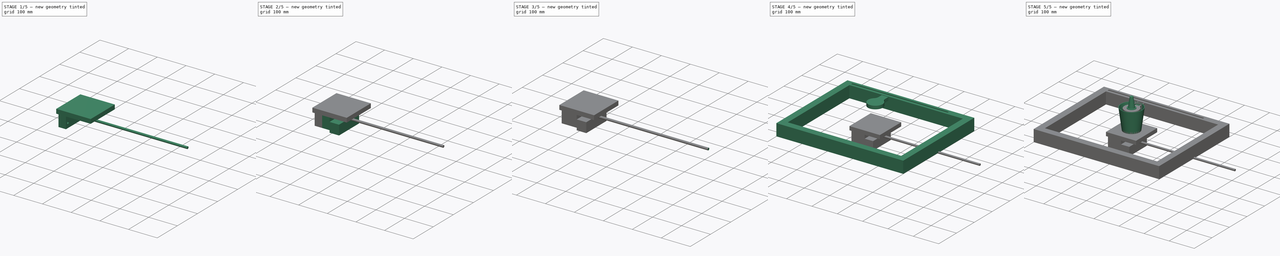
[diagram: build sequence overview — one tinted view per stage of 5, left to right]
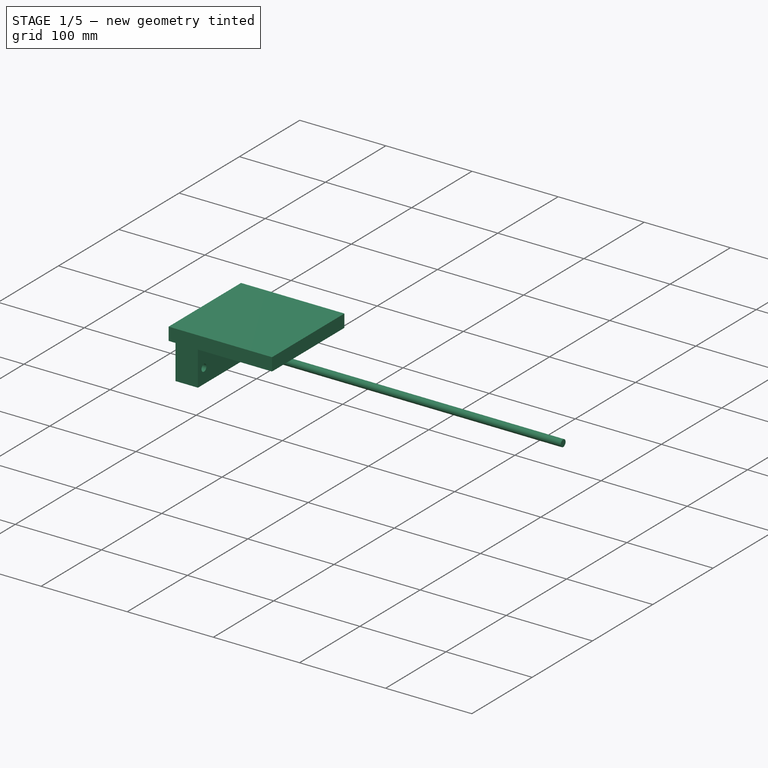
[diagram: stage 1 of 5 — iso view after this stage's code; geometry added in this stage tinted green]
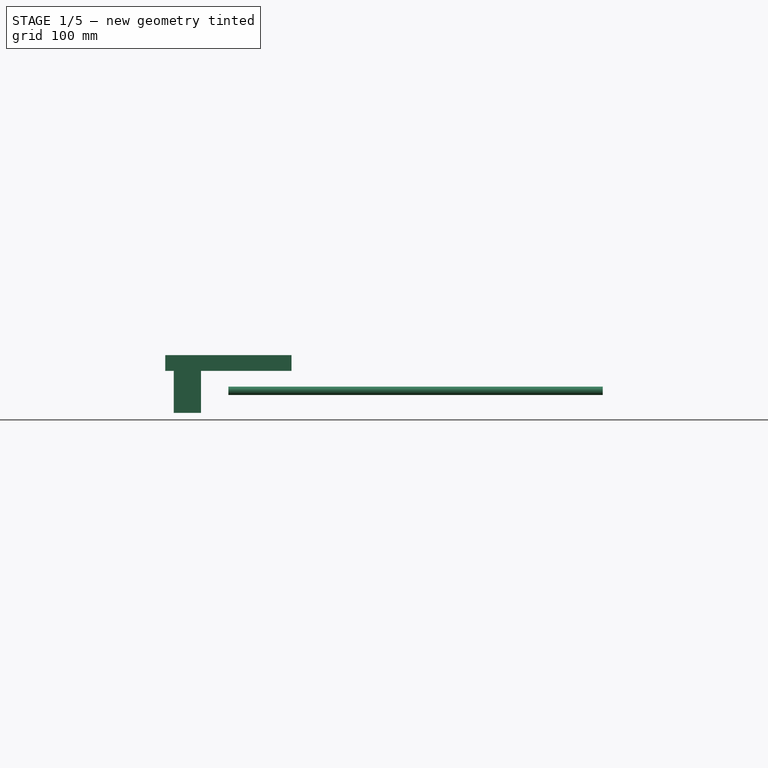
[diagram: stage 1 of 5 — front view after this stage's code; geometry added in this stage tinted green]
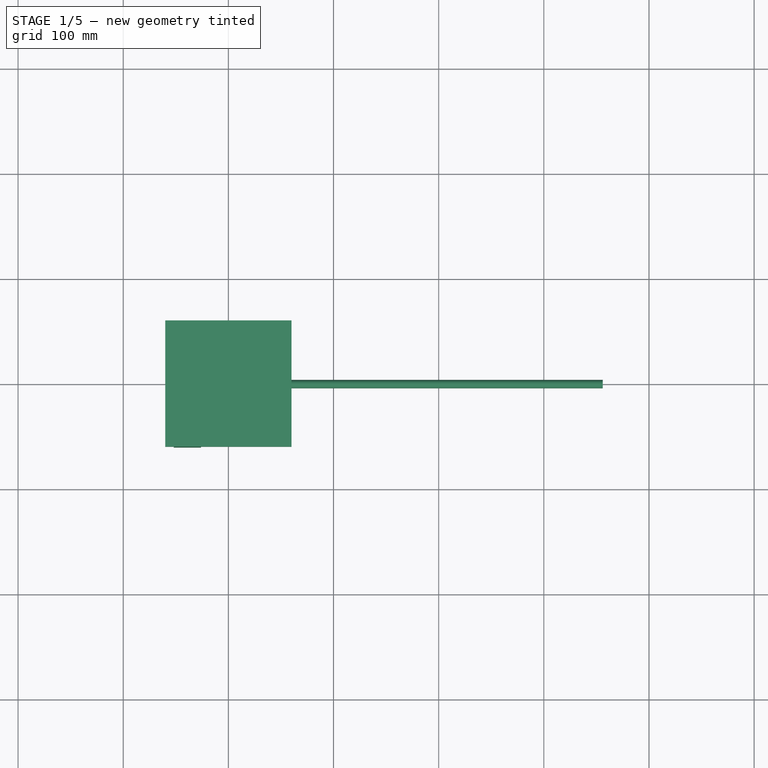
[diagram: stage 1 of 5 — top view after this stage's code; geometry added in this stage tinted green]
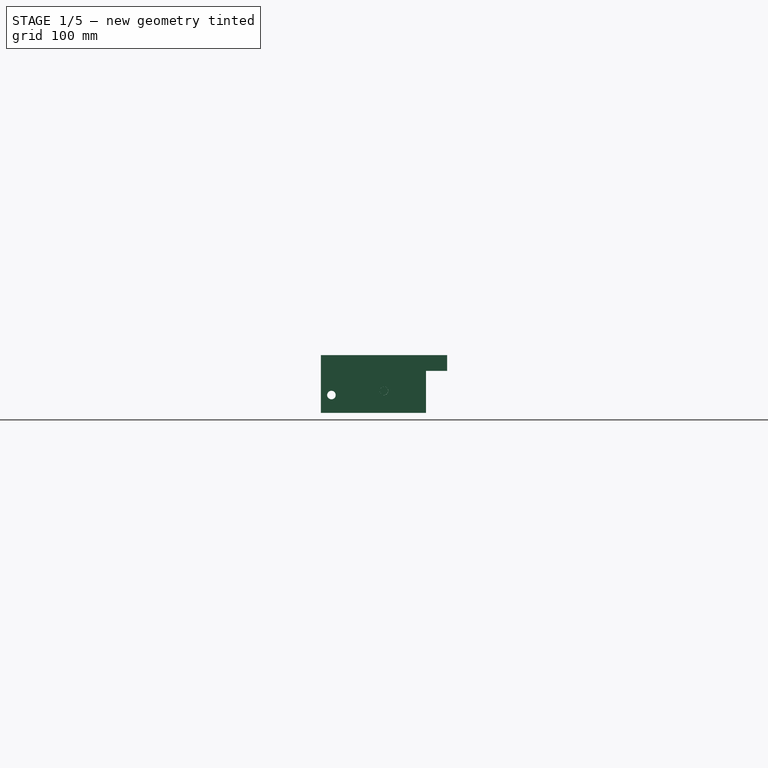
[diagram: stage 1 of 5 — right view after this stage's code; geometry added in this stage tinted green]
FCSTD DOCUMENT  (FreeCAD 0.18R4 (GitTag))
Label: CocktailAutomat
License: All rights reserved
LicenseURL: http://en.wikipedia.org/wiki/All_rights_reserved
objects: Sketcher::SketchObject×32, PartDesign::Body×14, PartDesign::Pocket×14, PartDesign::Pad×13, PartDesign::ShapeBinder×4, PartDesign::Revolution×3, PartDesign::Plane×2, PartDesign::Hole×1
note: 114 computed .brp shape members not serialized (recipe doc carries the construction recipe); baked Part::Feature solids carry a one-line shape summary decoded from their .brp

FEATURE [PartDesign::Body] Body009  label="Plattform Basis 1"
  Group = -> [Sketch019,Pad009,Sketch020,Pocket007,Sketch021,Pocket008,Sketch023,Sketch025,Pocket009]
  Origin = -> Origin009
  Placement = pos=(60,135,29.5) rot=(0,0,1;0rad)
  Tip = -> Pocket009
FEATURE [PartDesign::Pad] Pad010
  Length = 26
  Length2 = 100
  Placement = pos=(-26,0,-1.15e-14) rot=(0.57735,0.57735,-0.57735;4.18879rad)
  Profile = -> Sketch024
  Type = 0
FEATURE [Sketcher::SketchObject] Sketch026
  MapMode = 5
  Placement = pos=(-26,0,-1.15e-14) rot=(0.57735,0.57735,0.57735;2.0944rad)
  Support = -> [Pad010]
  sketch-geometry (1):
    g0: Circle CenterX=0 CenterY=0 CenterZ=0 NormalX=0 NormalY=0 NormalZ=1 AngleXU=0 Radius=4.05
  constraints (2):
    c: Coincident(g0,g-1)
    c: Diameter(g0) = 8.1
FEATURE [PartDesign::Pocket] Pocket010
  BaseFeature = -> Pad010
  Length = 27
  Length2 = 100
  Placement = pos=(-26,0,-1.15e-14) rot=(0.57735,0.57735,-0.57735;4.18879rad)
  Profile = -> Sketch026
  Type = 0
FEATURE [Sketcher::SketchObject] Sketch027
  MapMode = 5
  Placement = pos=(-26,0,-1.15e-14) rot=(0.57735,0.57735,0.57735;2.0944rad)
  Support = -> [Pocket010]
  sketch-geometry (1):
    g0: Circle CenterX=-50 CenterY=-4 CenterZ=0 NormalX=0 NormalY=0 NormalZ=1 AngleXU=0 Radius=4.05
  constraints (3):
    c: DistanceY(g-1,g0) = -4
    c: DistanceX(g-2,g0) = -50
    c: Diameter(g0) = 8.1
FEATURE [PartDesign::Pocket] Pocket011
  BaseFeature = -> Pocket010
  Length = 27
  Length2 = 100
  Placement = pos=(-26,0,-1.15e-14) rot=(0.57735,0.57735,-0.57735;4.18879rad)
  Profile = -> Sketch027
  Type = 0
FEATURE [Sketcher::SketchObject] Sketch028
  MapMode = 5
  Placement = pos=(-26,0,-1.15e-14) rot=(0.57735,0.57735,0.57735;2.0944rad)
  Support = -> [Pocket011]
  sketch-geometry (8):
    g0: LineSegment StartX=6 StartY=-3.4641 StartZ=0 EndX=6 EndY=3.4641 EndZ=0
    g1: LineSegment StartX=6 StartY=3.4641 StartZ=0 EndX=0 EndY=6.9282 EndZ=0
    g2: LineSegment StartX=0 StartY=6.9282 StartZ=0 EndX=-6 EndY=3.4641 EndZ=0
    g3: LineSegment StartX=-6 StartY=3.4641 StartZ=0 EndX=-6 EndY=-3.4641 EndZ=0
    g4: LineSegment StartX=-6 StartY=-3.4641 StartZ=0 EndX=-9e-16 EndY=-6.9282 EndZ=0
    g5: LineSegment StartX=-9e-16 StartY=-6.9282 StartZ=0 EndX=6 EndY=-3.4641 EndZ=0
    g6: Circle [constr] CenterX=0 CenterY=0 CenterZ=0 NormalX=0 NormalY=0 NormalZ=1 AngleXU=0 Radius=6.9282
    g7: Circle [constr] CenterX=0 CenterY=0 CenterZ=0 NormalX=0 NormalY=0 NormalZ=1 AngleXU=0 Radius=6
  constraints (18):
    c: Coincident(g0,g1)
    c: Coincident(g1,g2)
    c: Coincident(g2,g3)
    c: Coincident(g3,g4)
    c: Coincident(g4,g5)
    c: Coincident(g5,g0)
    c: Equal(g0, g1-g5) x5
    c: PointOnObject(g0,g6)
    c: PointOnObject(g1,g6)
    c: PointOnObject(g2,g6)
    c: PointOnObject(g3,g6)
    c: PointOnObject(g4,g6)
    c: PointOnObject(g5,g6)
    c: Coincident(g6,g-1)
    c: Vertical(g3)
    c: Coincident(g7,g-1)
    c: Tangent(g1,g7)
    c: Diameter(g7) = 12
FEATURE [PartDesign::Pocket] Pocket012
  BaseFeature = -> Pocket011
  Length = 15
  Length2 = 100
  Placement = pos=(-26,0,-1.15e-14) rot=(0.57735,0.57735,-0.57735;4.18879rad)
  Profile = -> Sketch028
  Type = 0
FEATURE [PartDesign::Body] Body010  label="Plattform Basis 2"
  Group = -> [Sketch024,Pad010,Sketch026,Pocket010,Sketch027,Pocket011,Sketch028,Pocket012,Sketch029,Pocket013]
  Origin = -> Origin010
  Placement = pos=(60,135,29.5) rot=(0,0,1;0rad)
  Tip = -> Pocket013
FEATURE [PartDesign::ShapeBinder] CopyPocket009
  Placement = pos=(0,0,0) rot=(0.57735,0.57735,0.57735;2.0944rad)
  TraceSupport = false
FEATURE [Sketcher::SketchObject] Sketch032
  MapMode = 5
  Placement = pos=(-1.1e-15,4.2e-15,19) rot=(0,0,-1;1.5708rad)
  Support = -> [CopyPocket009]
  sketch-geometry (4):
    g0: LineSegment StartX=60 StartY=60 StartZ=0 EndX=-60 EndY=60 EndZ=0
    g1: LineSegment StartX=-60 StartY=60 StartZ=0 EndX=-60 EndY=-60 EndZ=0
    g2: LineSegment StartX=60 StartY=60 StartZ=0 EndX=60 EndY=-60 EndZ=0
    g3: LineSegment StartX=60 StartY=-60 StartZ=0 EndX=-60 EndY=-60 EndZ=0
  constraints (12):
    c: Coincident(g1,g3)
    c: Coincident(g3,g2)
    c: Coincident(g2,g0)
    c: Coincident(g0,g1)
    c: Horizontal(g0)
    c: Horizontal(g3)
    c: Vertical(g2)
    c: Vertical(g1)
    c: Distance(g-1,g3) = 60
    c: DistanceY(g1,g1) = 120
    c: Distance(g-1,g1) = 60
    c: Distance(g3) = 120
FEATURE [Sketcher::SketchObject] Sketch033
  MapMode = 5
  Placement = pos=(0,0,0) rot=(0.57735,0.57735,0.57735;2.0944rad)
  Support = -> [YZ_Plane012]
  sketch-geometry (1):
    g0: Circle CenterX=0 CenterY=0 CenterZ=0 NormalX=0 NormalY=0 NormalZ=1 AngleXU=0 Radius=4
  constraints (2):
    c: Diameter(g0) = 8
    c: Coincident(g0,g-1)
FEATURE [PartDesign::Pad] Pad011
  Length = 356
  Length2 = 100
  Placement = pos=(0,0,0) rot=(0.57735,0.57735,0.57735;2.0944rad)
  Profile = -> Sketch033
  Type = 0
FEATURE [PartDesign::Body] Body012  label="Gewindestange"
  Group = -> [Sketch033,Pad011]
  Origin = -> Origin012
  Placement = pos=(-200,135,29.5) rot=(0,0,1;0rad)
  Tip = -> Pad011
FEATURE [PartDesign::Pad] Pad012
  Length = 15
  Length2 = 100
  Placement = pos=(0,0,0) rot=(0.57735,0.57735,0.57735;2.0944rad)
  Profile = -> Sketch032
  Type = 0
FEATURE [PartDesign::Body] Body011  label="Plattform Boden"
  Group = -> [CopyPocket009,Sketch032,Pad012]
  Origin = -> Origin011
  Placement = pos=(34,135,29.5) rot=(0,0,1;0rad)
  Tip = -> Pad012
FEATURE [PartDesign::ShapeBinder] CopyPad012
  TraceSupport = false
FEATURE [Sketcher::SketchObject] Sketch034
  MapMode = 5
  Placement = pos=(0,0,0) rot=(1,0,0;1.5708rad)
  Support = -> [XZ_Plane013]
  sketch-geometry (8):
    g0: LineSegment StartX=-35.4774 StartY=19 StartZ=0 EndX=-25 EndY=19 EndZ=0
    g1: LineSegment StartX=-25 StartY=19 StartZ=0 EndX=-25 EndY=4 EndZ=0
    g2: LineSegment StartX=-25 StartY=4 StartZ=0 EndX=25 EndY=4 EndZ=0
    g3: LineSegment StartX=25 StartY=4 StartZ=0 EndX=25 EndY=19 EndZ=0
    g4: LineSegment StartX=25 StartY=19 StartZ=0 EndX=35.4774 EndY=19 EndZ=0
    g5: LineSegment StartX=35.4774 StartY=19 StartZ=0 EndX=35.4774 EndY=72.3212 EndZ=0
    g6: LineSegment StartX=35.4774 StartY=72.3212 StartZ=0 EndX=-35.4774 EndY=72.3212 EndZ=0
    g7: LineSegment StartX=-35.4774 StartY=72.3212 StartZ=0 EndX=-35.4774 EndY=19 EndZ=0
  constraints (21):
    c: Coincident(g0,g1)
    c: Coincident(g1,g2)
    c: Coincident(g2,g3)
    c: Coincident(g3,g4)
    c: Coincident(g4,g5)
    c: Coincident(g5,g6)
    c: Coincident(g6,g7)
    c: Coincident(g7,g0)
    c: DistanceX(g2,g2) = 50
    c: Vertical(g1)
    c: Vertical(g3)
    c: Vertical(g7)
    c: Vertical(g5)
    c: Horizontal(g6)
    c: Horizontal(g4)
    c: Equal(g0,g4)
    c: Equal(g1,g3)
    c: Equal(g7,g5)
    c: Symmetric(g1,g2,g-2)
    c: Distance(g-1,g2) = 4
    c: Distance(g-1,g4) = 19
FEATURE [PartDesign::Body] Body013  label="Plattform Wand"
  Group = -> [CopyPad012,Sketch034]
  Origin = -> Origin013
  Placement = pos=(34,135,44.5) rot=(0,0,1;0rad)
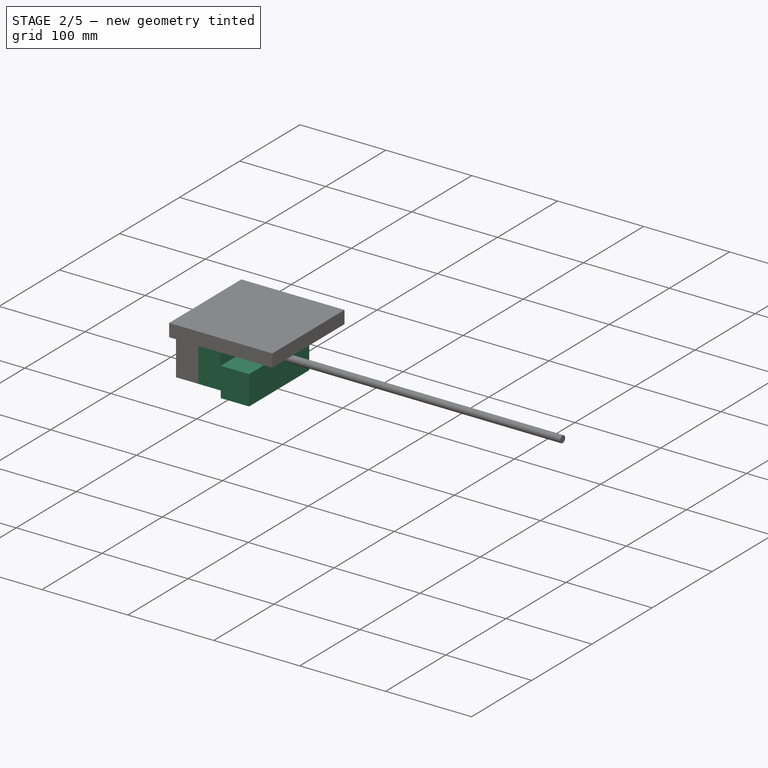
[diagram: stage 2 of 5 — iso view after this stage's code; geometry added in this stage tinted green]
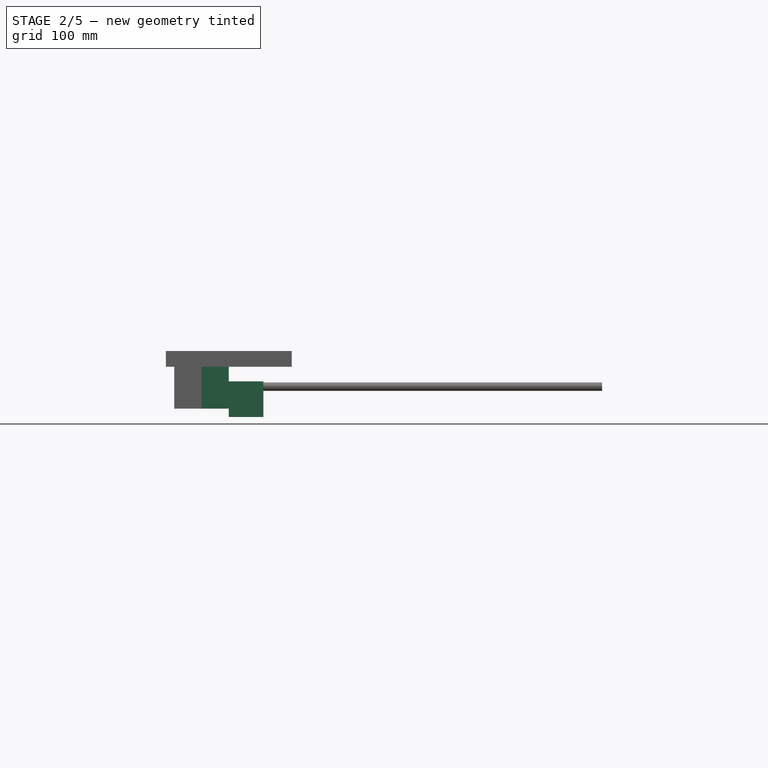
[diagram: stage 2 of 5 — front view after this stage's code; geometry added in this stage tinted green]
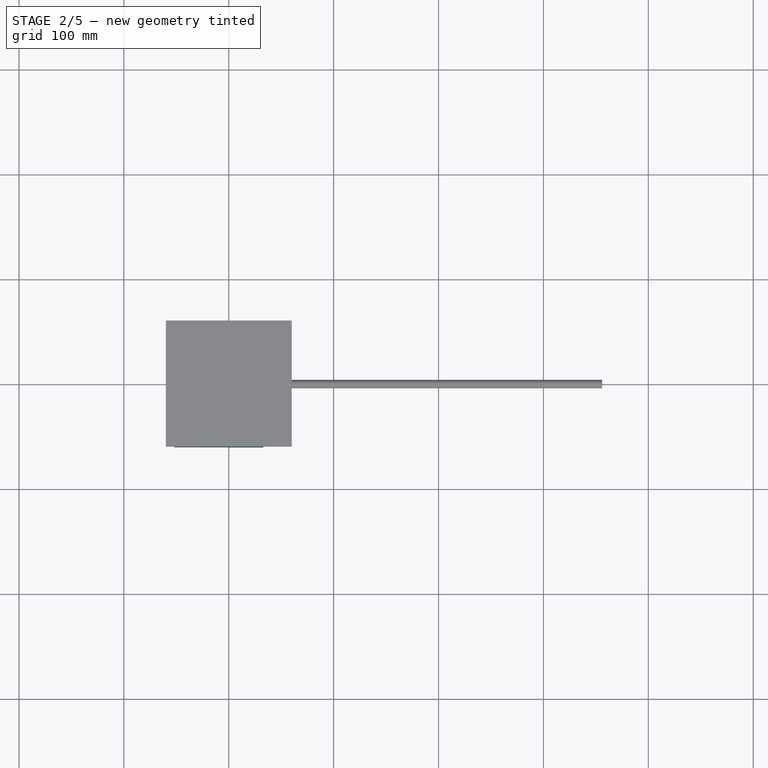
[diagram: stage 2 of 5 — top view after this stage's code; geometry added in this stage tinted green]
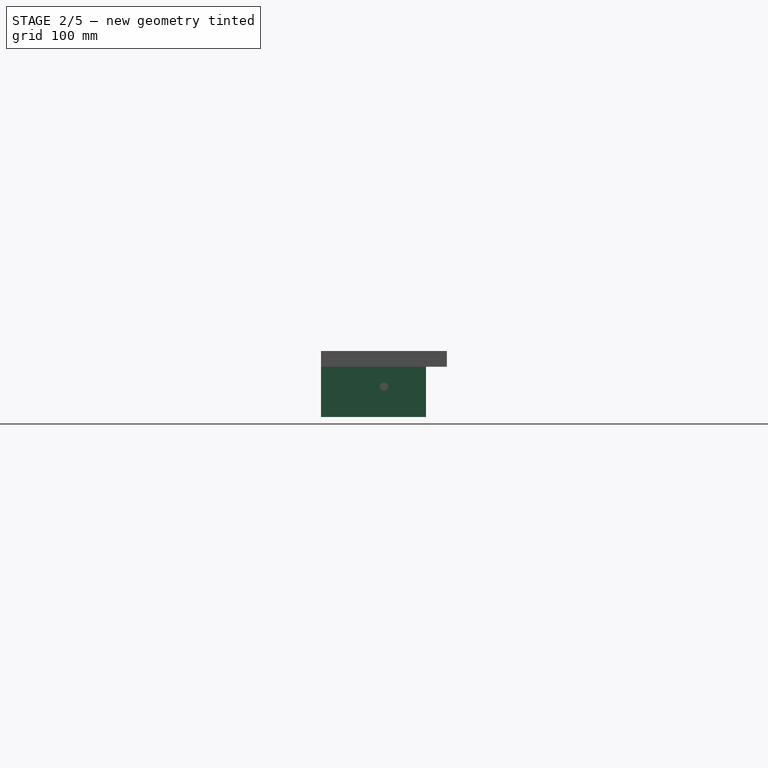
[diagram: stage 2 of 5 — right view after this stage's code; geometry added in this stage tinted green]
FEATURE [PartDesign::Body] Body006  label="Halterung"
  Group = -> [DatumPlane001,CopyPad005,Sketch013,Pad007,Sketch014,Pocket003,Sketch015,Pocket004]
  Origin = -> Origin006
  Placement = pos=(170,135,29.5) rot=(0,0,1;0rad)
  Tip = -> Pocket004
FEATURE [Sketcher::SketchObject] Sketch016
  MapMode = 5
  Placement = pos=(0,0,0) rot=(0.57735,0.57735,0.57735;2.0944rad)
  Support = -> [YZ_Plane008]
  sketch-geometry (4):
    g0: LineSegment StartX=-60 StartY=5 StartZ=0 EndX=-60 EndY=-29 EndZ=0
    g1: LineSegment StartX=40 StartY=-29 StartZ=0 EndX=40 EndY=5 EndZ=0
    g2: LineSegment StartX=-60 StartY=5 StartZ=0 EndX=40 EndY=5 EndZ=0
    g3: LineSegment StartX=-60 StartY=-29 StartZ=0 EndX=40 EndY=-29 EndZ=0
  constraints (12):
    c: Horizontal(g2)
    c: Vertical(g0)
    c: Vertical(g1)
    c: Horizontal(g3)
    c: Coincident(g3,g0)
    c: Coincident(g1,g3)
    c: Coincident(g1,g2)
    c: Coincident(g0,g2)
    c: DistanceX(g2,g2) = 100
    c: DistanceY(g0,g0) = 34
    c: Distance(g-1,g2) = 5
    c: Distance(g-1,g0) = 60
FEATURE [PartDesign::Pad] Pad008
  Length = 33
  Length2 = 100
  Placement = pos=(0,0,0) rot=(0.57735,0.57735,0.57735;2.0944rad)
  Profile = -> Sketch016
  Type = 0
FEATURE [PartDesign::Body] Body008  label="Halterung 2"
  Group = -> [Sketch016,Pad008,Sketch017,Sketch018,Pocket005,Pocket006]
  Origin = -> Origin008
  Placement = pos=(-224,135,29.5) rot=(0,0,1;0rad)
  Tip = -> Pocket006
FEATURE [Sketcher::SketchObject] Sketch019
  MapMode = 5
  Placement = pos=(0,0,0) rot=(0.57735,0.57735,0.57735;2.0944rad)
  Support = -> [YZ_Plane009]
  sketch-geometry (6):
    g0: Circle CenterX=0 CenterY=0 CenterZ=0 NormalX=0 NormalY=0 NormalZ=1 AngleXU=0 Radius=4.05
    g1: Circle CenterX=-50 CenterY=-4 CenterZ=0 NormalX=0 NormalY=0 NormalZ=1 AngleXU=0 Radius=4.05
    g2: LineSegment StartX=-60 StartY=-21 StartZ=0 EndX=-60 EndY=19 EndZ=0
    g3: LineSegment StartX=-60 StartY=19 StartZ=0 EndX=40 EndY=19 EndZ=0
    g4: LineSegment StartX=40 StartY=19 StartZ=0 EndX=40 EndY=-21 EndZ=0
    g5: LineSegment StartX=40 StartY=-21 StartZ=0 EndX=-60 EndY=-21 EndZ=0
  constraints (17):
    c: Coincident(g-1,g0)
    c: Diameter(g0) = 8.1
    c: DistanceY(g-1,g1) = -4
    c: DistanceX(g-2,g1) = -50
    c: Diameter(g1) = 8.1
    c: Coincident(g2,g3)
    c: Coincident(g3,g4)
    c: Coincident(g4,g5)
    c: Coincident(g5,g2)
    c: Horizontal(g3)
    c: Vertical(g2)
    c: Vertical(g4)
    c: Horizontal(g5)
    c: DistanceY(g2,g2) = 40
    c: DistanceX(g3,g3) = 100
    c: Distance(g0,g3) = 19
    c: Distance(g0,g4) = 40
FEATURE [PartDesign::Pad] Pad009
  Length = 26
  Length2 = 100
  Placement = pos=(0,0,0) rot=(0.57735,0.57735,0.57735;2.0944rad)
  Profile = -> Sketch019
  Reversed = true
  Type = 0
FEATURE [Sketcher::SketchObject] Sketch020
  MapMode = 5
  Placement = pos=(-26,1.15e-14,-8.7e-15) rot=(0.57735,0.57735,-0.57735;4.18879rad)
  Support = -> [Pad009]
  sketch-geometry (8):
    g0: LineSegment StartX=6 StartY=-3.4641 StartZ=0 EndX=6 EndY=3.4641 EndZ=0
    g1: LineSegment StartX=6 StartY=3.4641 StartZ=0 EndX=0 EndY=6.9282 EndZ=0
    g2: LineSegment StartX=0 StartY=6.9282 StartZ=0 EndX=-6 EndY=3.4641 EndZ=0
    g3: LineSegment StartX=-6 StartY=3.4641 StartZ=0 EndX=-6 EndY=-3.4641 EndZ=0
    g4: LineSegment StartX=-6 StartY=-3.4641 StartZ=0 EndX=0 EndY=-6.9282 EndZ=0
    g5: LineSegment StartX=0 StartY=-6.9282 StartZ=0 EndX=6 EndY=-3.4641 EndZ=0
    g6: Circle [constr] CenterX=0 CenterY=0 CenterZ=0 NormalX=0 NormalY=0 NormalZ=1 AngleXU=0 Radius=6.9282
    g7: Circle [constr] CenterX=0 CenterY=0 CenterZ=0 NormalX=0 NormalY=0 NormalZ=1 AngleXU=0 Radius=6
  constraints (18):
    c: Coincident(g0,g1)
    c: Coincident(g1,g2)
    c: Coincident(g2,g3)
    c: Coincident(g3,g4)
    c: Coincident(g4,g5)
    c: Coincident(g5,g0)
    c: Equal(g0, g1-g5) x5
    c: PointOnObject(g0,g6)
    c: PointOnObject(g1,g6)
    c: PointOnObject(g2,g6)
    c: PointOnObject(g3,g6)
    c: PointOnObject(g4,g6)
    c: PointOnObject(g5,g6)
    c: Coincident(g6,g-1)
    c: Coincident(g7,g-1)
    c: Tangent(g7,g1)
    c: Vertical(g3)
    c: Diameter(g7) = 12
FEATURE [PartDesign::Pocket] Pocket007
  BaseFeature = -> Pad009
  Length = 15
  Length2 = 100
  Placement = pos=(0,0,0) rot=(0.57735,0.57735,0.57735;2.0944rad)
  Profile = -> Sketch020
  Type = 0
FEATURE [Sketcher::SketchObject] Sketch021
  MapMode = 5
  Placement = pos=(-26,1.73e-14,-1.15e-14) rot=(-0.57735,-0.57735,0.57735;2.0944rad)
  Support = -> [Pocket007]
  sketch-geometry (1):
    g0: Circle CenterX=-50 CenterY=4 CenterZ=0 NormalX=0 NormalY=0 NormalZ=1 AngleXU=0 Radius=4.05
  constraints (3):
    c: Diameter(g0) = 8.1
    c: DistanceY(g-1,g0) = 4
    c: DistanceX(g-2,g0) = -50
FEATURE [PartDesign::Pocket] Pocket008
  BaseFeature = -> Pocket007
  Length = 30
  Length2 = 100
  Placement = pos=(0,0,0) rot=(0.57735,0.57735,0.57735;2.0944rad)
  Profile = -> Sketch021
  Type = 0
FEATURE [Sketcher::SketchObject] Sketch023
  MapMode = 5
  Placement = pos=(-26,2.89e-14,-1.73e-14) rot=(-0.57735,-0.57735,0.57735;2.0944rad)
  sketch-geometry (4):
    g0: LineSegment StartX=-60 StartY=21 StartZ=0 EndX=40 EndY=21 EndZ=0
    g1: LineSegment StartX=40 StartY=-19 StartZ=0 EndX=-60 EndY=-19 EndZ=0
    g2: LineSegment StartX=-60 StartY=21 StartZ=0 EndX=-60 EndY=-19 EndZ=0
    g3: LineSegment StartX=40 StartY=-19 StartZ=0 EndX=40 EndY=21 EndZ=0
  constraints (12):
    c: Coincident(g2,g0)
    c: Coincident(g1,g2)
    c: Coincident(g1,g3)
    c: Coincident(g0,g3)
    c: Vertical(g3)
    c: Vertical(g2)
    c: Horizontal(g0)
    c: Horizontal(g1)
    c: Distance(g-1,g3) = 40
    c: DistanceX(g0,g0) = 100
    c: DistanceY(g3,g3) = 40
    c: Distance(g-1,g0) = 21
FEATURE [Sketcher::SketchObject] Sketch024
  MapMode = 5
  Placement = pos=(-26,0,-1.15e-14) rot=(0.57735,0.57735,-0.57735;4.18879rad)
  sketch-geometry (4):
    g0: LineSegment StartX=-60 StartY=21 StartZ=0 EndX=40 EndY=21 EndZ=0
    g1: LineSegment StartX=40 StartY=21 StartZ=0 EndX=40 EndY=-19 EndZ=0
    g2: LineSegment StartX=40 StartY=-19 StartZ=0 EndX=-60 EndY=-19 EndZ=0
    g3: LineSegment StartX=-60 StartY=-19 StartZ=0 EndX=-60 EndY=21 EndZ=0
  constraints (12):
    c: Coincident(g0,g1)
    c: Coincident(g1,g2)
    c: Coincident(g2,g3)
    c: Coincident(g3,g0)
    c: Vertical(g3)
    c: Vertical(g1)
    c: Horizontal(g0)
    c: Horizontal(g2)
    c: DistanceX(g0,g0) = 100
    c: DistanceY(g1,g1) = 40
    c: Distance(g-1,g0) = 21
    c: Distance(g-1,g1) = 40
FEATURE [Sketcher::SketchObject] Sketch025
  MapMode = 5
  Placement = pos=(-26,2.31e-14,-1.44e-14) rot=(-0.57735,-0.57735,0.57735;2.0944rad)
  Support = -> [Pocket008]
  sketch-geometry (8):
    g0: LineSegment StartX=-56 StartY=7.4641 StartZ=0 EndX=-56 EndY=0.535898 EndZ=0
    g1: LineSegment StartX=-56 StartY=0.535898 StartZ=0 EndX=-50 EndY=-2.9282 EndZ=0
    g2: LineSegment StartX=-50 StartY=-2.9282 StartZ=0 EndX=-44 EndY=0.535898 EndZ=0
    g3: LineSegment StartX=-44 StartY=0.535898 StartZ=0 EndX=-44 EndY=7.4641 EndZ=0
    g4: LineSegment StartX=-44 StartY=7.4641 StartZ=0 EndX=-50 EndY=10.9282 EndZ=0
    g5: LineSegment StartX=-50 StartY=10.9282 StartZ=0 EndX=-56 EndY=7.4641 EndZ=0
    g6: Circle [constr] CenterX=-50 CenterY=4 CenterZ=0 NormalX=0 NormalY=0 NormalZ=1 AngleXU=0 Radius=6.9282
    g7: Circle [constr] CenterX=-50 CenterY=4 CenterZ=0 NormalX=0 NormalY=0 NormalZ=1 AngleXU=0 Radius=6
  constraints (19):
    c: Coincident(g0,g1)
    c: Coincident(g1,g2)
    c: Coincident(g2,g3)
    c: Coincident(g3,g4)
    c: Coincident(g4,g5)
    c: Coincident(g5,g0)
    c: Equal(g0, g1-g5) x5
    c: PointOnObject(g0,g6)
    c: PointOnObject(g1,g6)
    c: PointOnObject(g2,g6)
    c: PointOnObject(g3,g6)
    c: PointOnObject(g4,g6)
    c: PointOnObject(g5,g6)
    c: DistanceY(g-1,g6) = 4
    c: DistanceX(g-2,g6) = -50
    c: Coincident(g7,g6)
    c: Tangent(g7,g1)
    c: Vertical(g3)
    c: Diameter(g7) = 12
FEATURE [PartDesign::Pocket] Pocket009
  BaseFeature = -> Pocket008
  Length = 6.1
  Length2 = 100
  Placement = pos=(0,0,0) rot=(0.57735,0.57735,0.57735;2.0944rad)
  Profile = -> Sketch025
  Type = 0
FEATURE [Sketcher::SketchObject] Sketch029
  MapMode = 5
  Placement = pos=(-26,0,-1.15e-14) rot=(0.57735,0.57735,0.57735;2.0944rad)
  Support = -> [Pocket012]
  sketch-geometry (8):
    g0: LineSegment StartX=-44 StartY=-7.4641 StartZ=0 EndX=-44 EndY=-0.535898 EndZ=0
    g1: LineSegment StartX=-44 StartY=-0.535898 StartZ=0 EndX=-50 EndY=2.9282 EndZ=0
    g2: LineSegment StartX=-50 StartY=2.9282 StartZ=0 EndX=-56 EndY=-0.535898 EndZ=0
    g3: LineSegment StartX=-56 StartY=-0.535898 StartZ=0 EndX=-56 EndY=-7.4641 EndZ=0
    g4: LineSegment StartX=-56 StartY=-7.4641 StartZ=0 EndX=-50 EndY=-10.9282 EndZ=0
    g5: LineSegment StartX=-50 StartY=-10.9282 StartZ=0 EndX=-44 EndY=-7.4641 EndZ=0
    g6: Circle [constr] CenterX=-50 CenterY=-4 CenterZ=0 NormalX=0 NormalY=0 NormalZ=1 AngleXU=0 Radius=6.9282
    g7: Circle [constr] CenterX=-50 CenterY=-4 CenterZ=0 NormalX=0 NormalY=0 NormalZ=1 AngleXU=0 Radius=6
  constraints (19):
    c: Coincident(g0,g1)
    c: Coincident(g1,g2)
    c: Coincident(g2,g3)
    c: Coincident(g3,g4)
    c: Coincident(g4,g5)
    c: Coincident(g5,g0)
    c: Equal(g0, g1-g5) x5
    c: PointOnObject(g0,g6)
    c: PointOnObject(g1,g6)
    c: PointOnObject(g2,g6)
    c: PointOnObject(g3,g6)
    c: PointOnObject(g4,g6)
    c: PointOnObject(g5,g6)
    c: DistanceY(g-1,g6) = -4
    c: DistanceX(g-2,g6) = -50
    c: Vertical(g3)
    c: Coincident(g7,g6)
    c: Tangent(g7,g1)
    c: Diameter(g7) = 12
FEATURE [PartDesign::Pocket] Pocket013
  BaseFeature = -> Pocket012
  Length = 6.1
  Length2 = 100
  Placement = pos=(-26,0,-1.15e-14) rot=(0.57735,0.57735,-0.57735;4.18879rad)
  Profile = -> Sketch029
  Type = 0
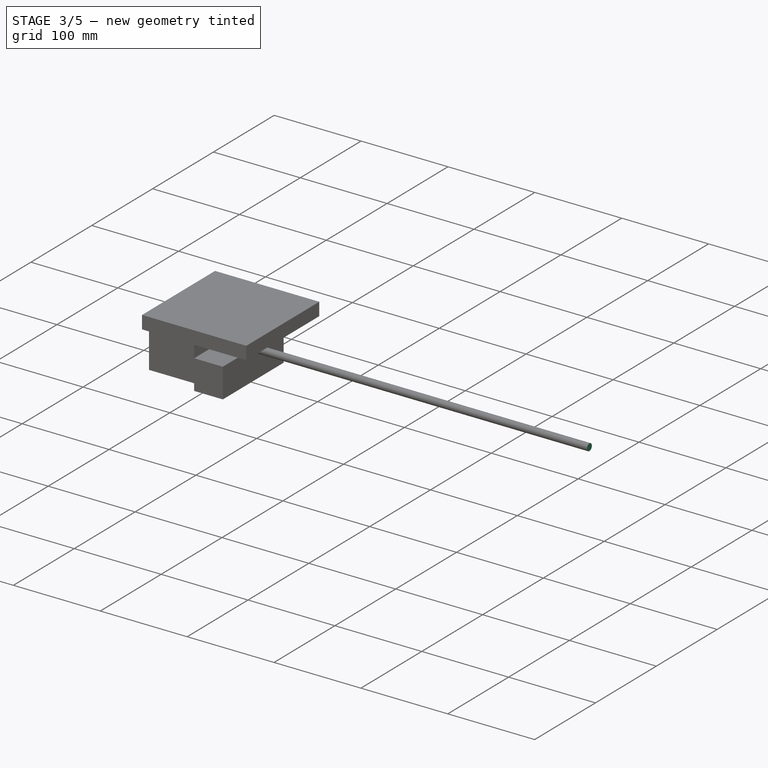
[diagram: stage 3 of 5 — iso view after this stage's code; geometry added in this stage tinted green]
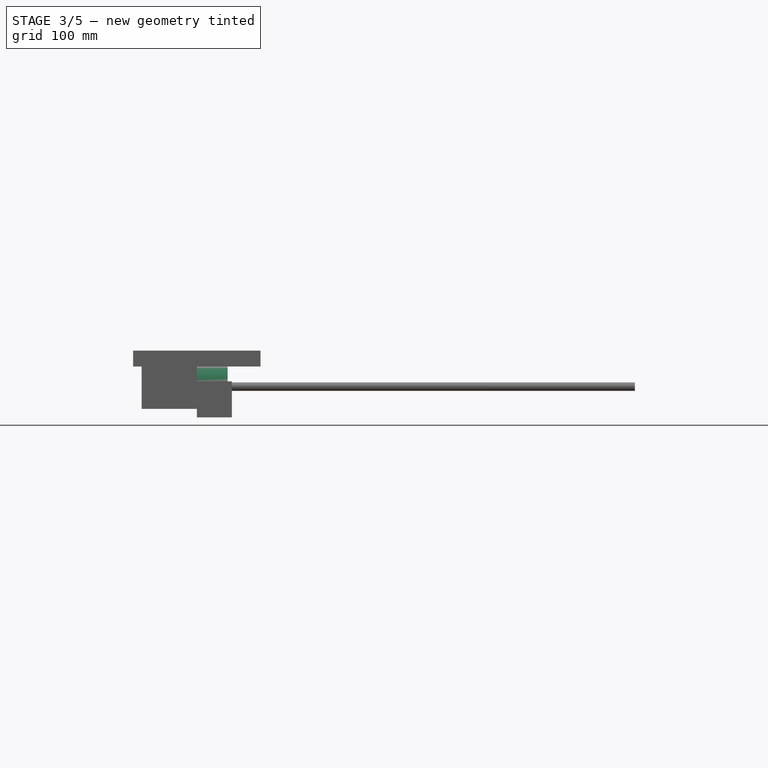
[diagram: stage 3 of 5 — front view after this stage's code; geometry added in this stage tinted green]
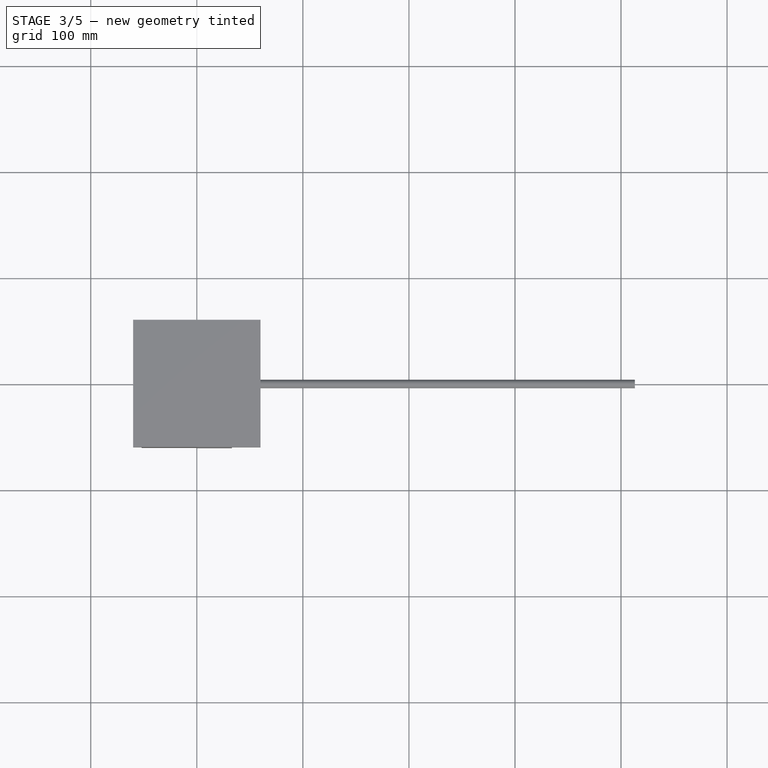
[diagram: stage 3 of 5 — top view after this stage's code; geometry added in this stage tinted green]
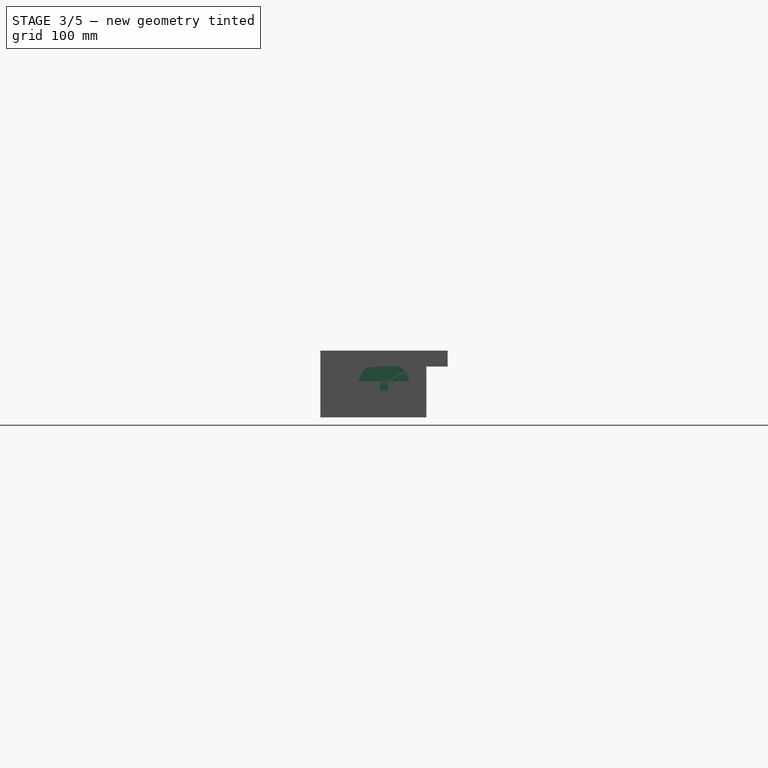
[diagram: stage 3 of 5 — right view after this stage's code; geometry added in this stage tinted green]
FEATURE [PartDesign::Body] Body004  label="Grundgestell"
  Group = -> [Sketch007,Pad002,Sketch008,Pad003,Pocket002]
  Origin = -> Origin004
  Tip = -> Pocket002
FEATURE [Sketcher::SketchObject] Sketch009
  MapMode = 5
  Placement = pos=(0,0,0) rot=(0.57735,0.57735,0.57735;2.0944rad)
  Support = -> [YZ_Plane005]
  sketch-geometry (1):
    g0: Circle CenterX=0 CenterY=0 CenterZ=0 NormalX=0 NormalY=0 NormalZ=1 AngleXU=0 Radius=24.5
  constraints (2):
    c: Diameter(g0) = 49
    c: Coincident(g0,g-1)
FEATURE [PartDesign::Pad] Pad004
  Length = 29
  Length2 = 100
  Placement = pos=(0,0,0) rot=(0.57735,0.57735,0.57735;2.0944rad)
  Profile = -> Sketch009
  Type = 0
FEATURE [PartDesign::Body] Body005  label="Motor"
  Group = -> [Sketch009,Pad004,Sketch010,Revolution002,Sketch011,Pad005]
  Origin = -> Origin005
  Placement = pos=(170,135,29.5) rot=(0,0,1;0rad)
  Tip = -> Pad005
FEATURE [Sketcher::SketchObject] Sketch012
  MapMode = 5
  Placement = pos=(0,0,0) rot=(0.57735,0.57735,0.57735;2.0944rad)
  Support = -> [YZ_Plane007]
  sketch-geometry (1):
    g0: Circle CenterX=0 CenterY=0 CenterZ=0 NormalX=0 NormalY=0 NormalZ=1 AngleXU=0 Radius=4
  constraints (2):
    c: Coincident(g0,g-1)
    c: Diameter(g0) = 8
FEATURE [PartDesign::Pad] Pad006
  Length = 413
  Length2 = 100
  Placement = pos=(0,0,0) rot=(0.57735,0.57735,0.57735;2.0944rad)
  Profile = -> Sketch012
  Type = 0
FEATURE [PartDesign::Body] Body007  label="runde Stange"
  Group = -> [Sketch012,Pad006]
  Origin = -> Origin007
  Placement = pos=(-221,85,25) rot=(0,0,1;0rad)
  Tip = -> Pad006
FEATURE [PartDesign::ShapeBinder] CopyPad005
  Placement = pos=(0,0,0) rot=(0.57735,0.57735,0.57735;2.0944rad)
  TraceSupport = false
FEATURE [PartDesign::Plane] DatumPlane001
  Length = 112.49
  MapMode = 5
  Placement = pos=(0,0,0) rot=(0.57735,0.57735,0.57735;2.0944rad)
  ResizeMode = 0
  Support = -> [CopyPad005]
  Width = 51.49
FEATURE [Sketcher::SketchObject] Sketch013
  MapMode = 5
  Placement = pos=(0,0,0) rot=(0.57735,0.57735,0.57735;2.0944rad)
  Support = -> [CopyPad005]
  sketch-geometry (4):
    g0: LineSegment StartX=-60 StartY=-29 StartZ=0 EndX=40 EndY=-29 EndZ=0
    g1: LineSegment StartX=-60 StartY=5 StartZ=0 EndX=-60 EndY=-29 EndZ=0
    g2: LineSegment StartX=-60 StartY=5 StartZ=0 EndX=40 EndY=5 EndZ=0
    g3: LineSegment StartX=40 StartY=5 StartZ=0 EndX=40 EndY=-29 EndZ=0
  constraints (12):
    c: Horizontal(g0)
    c: Coincident(g1,g0)
    c: Vertical(g1)
    c: DistanceY(g1,g1) = 34
    c: Coincident(g2,g1)
    c: Horizontal(g2)
    c: Coincident(g3,g2)
    c: Coincident(g3,g0)
    c: Vertical(g3)
    c: DistanceX(g2,g2) = 100
    c: Distance(g-1,g0) = 29
    c: Distance(g-1,g3) = 40
FEATURE [PartDesign::Pad] Pad007
  Length = 33
  Length2 = 100
  Placement = pos=(0,0,0) rot=(0.57735,0.57735,0.57735;2.0944rad)
  Profile = -> Sketch013
  Type = 0
FEATURE [Sketcher::SketchObject] Sketch014
  MapMode = 5
  Placement = pos=(2e-16,0,0) rot=(-0.57735,-0.57735,0.57735;2.0944rad)
  Support = -> [Pad007]
  sketch-geometry (1):
    g0: Circle CenterX=0 CenterY=0 CenterZ=0 NormalX=0 NormalY=0 NormalZ=1 AngleXU=0 Radius=24.5
  constraints (2):
    c: Coincident(g-1,g0)
    c: Diameter(g0) = 49
FEATURE [PartDesign::Pocket] Pocket003
  BaseFeature = -> Pad007
  Length = 30
  Length2 = 100
  Placement = pos=(0,0,0) rot=(0.57735,0.57735,0.57735;2.0944rad)
  Profile = -> Sketch014
  Type = 0
FEATURE [Sketcher::SketchObject] Sketch015
  MapMode = 5
  Placement = pos=(2e-16,0,0) rot=(0.57735,0.57735,-0.57735;4.18879rad)
  Support = -> [Pocket003]
  sketch-geometry (1):
    g0: Circle CenterX=-50 CenterY=4 CenterZ=0 NormalX=0 NormalY=0 NormalZ=1 AngleXU=0 Radius=4.05
  constraints (3):
    c: Diameter(g0) = 8.1
    c: DistanceY(g-1,g0) = 4
    c: DistanceX(g-2,g0) = -50
FEATURE [PartDesign::Pocket] Pocket004
  BaseFeature = -> Pocket003
  Length = 25
  Length2 = 100
  Placement = pos=(0,0,0) rot=(0.57735,0.57735,0.57735;2.0944rad)
  Profile = -> Sketch015
  Type = 0
FEATURE [Sketcher::SketchObject] Sketch017
  MapMode = 5
  Placement = pos=(33,-1.47e-14,1.1e-14) rot=(0.57735,0.57735,0.57735;2.0944rad)
  Support = -> [Pad008]
  sketch-geometry (1):
    g0: Circle CenterX=-50 CenterY=-4 CenterZ=0 NormalX=0 NormalY=0 NormalZ=1 AngleXU=0 Radius=4.05
  constraints (3):
    c: Diameter(g0) = 8.1
    c: DistanceX(g-2,g0) = -50
    c: DistanceY(g-1,g0) = -4
FEATURE [Sketcher::SketchObject] Sketch018
  MapMode = 5
  Placement = pos=(33,-1.47e-14,1.1e-14) rot=(0.57735,0.57735,0.57735;2.0944rad)
  Support = -> [Pad008]
  sketch-geometry (8):
    g0: LineSegment StartX=6 StartY=-3.4641 StartZ=0 EndX=6 EndY=3.4641 EndZ=0
    g1: LineSegment StartX=6 StartY=3.4641 StartZ=0 EndX=0 EndY=6.9282 EndZ=0
    g2: LineSegment StartX=0 StartY=6.9282 StartZ=0 EndX=-6 EndY=3.4641 EndZ=0
    g3: LineSegment StartX=-6 StartY=3.4641 StartZ=0 EndX=-6 EndY=-3.4641 EndZ=0
    g4: LineSegment StartX=-6 StartY=-3.4641 StartZ=0 EndX=0 EndY=-6.9282 EndZ=0
    g5: LineSegment StartX=0 StartY=-6.9282 StartZ=0 EndX=6 EndY=-3.4641 EndZ=0
    g6: Circle [constr] CenterX=0 CenterY=0 CenterZ=0 NormalX=0 NormalY=0 NormalZ=1 AngleXU=0 Radius=6.9282
    g7: Circle [constr] CenterX=0 CenterY=0 CenterZ=0 NormalX=0 NormalY=0 NormalZ=1 AngleXU=0 Radius=6
  constraints (18):
    c: Coincident(g0,g1)
    c: Coincident(g1,g2)
    c: Coincident(g2,g3)
    c: Coincident(g3,g4)
    c: Coincident(g4,g5)
    c: Coincident(g5,g0)
    c: Equal(g0, g1-g5) x5
    c: PointOnObject(g0,g6)
    c: PointOnObject(g1,g6)
    c: PointOnObject(g2,g6)
    c: PointOnObject(g3,g6)
    c: PointOnObject(g4,g6)
    c: PointOnObject(g5,g6)
    c: Tangent(g1,g7)
    c: Coincident(g7,g-1)
    c: Diameter(g7) = 12
    c: Coincident(g-1,g6)
    c: Vertical(g3)
FEATURE [PartDesign::Pocket] Pocket005
  BaseFeature = -> Pad008
  Length = 35
  Length2 = 100
  Placement = pos=(0,0,0) rot=(0.57735,0.57735,0.57735;2.0944rad)
  Profile = -> Sketch017
  Type = 0
FEATURE [PartDesign::Pocket] Pocket006
  BaseFeature = -> Pocket005
  Length = 10
  Length2 = 100
  Placement = pos=(0,0,0) rot=(0.57735,0.57735,0.57735;2.0944rad)
  Profile = -> Sketch018
  Type = 0
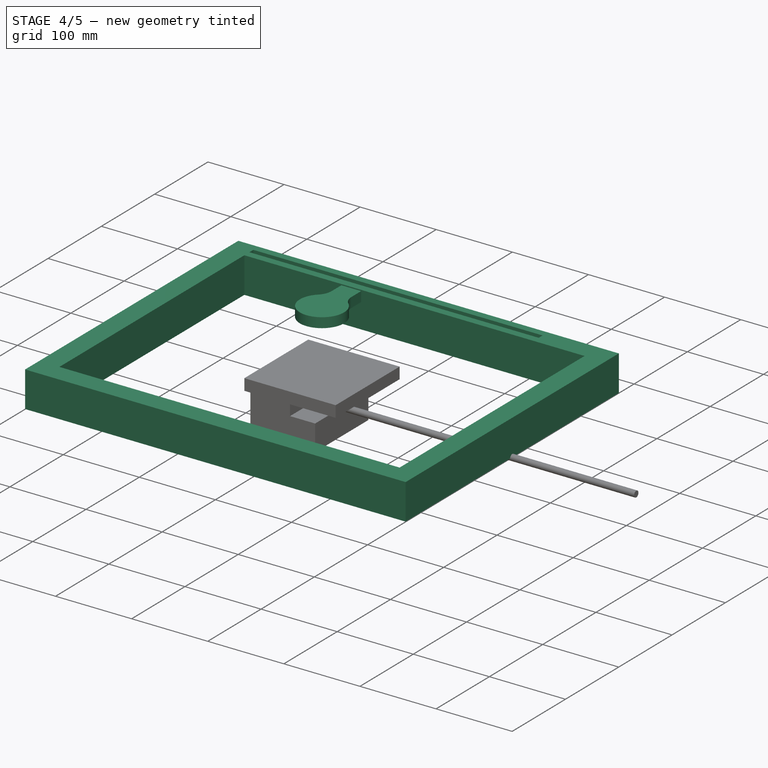
[diagram: stage 4 of 5 — iso view after this stage's code; geometry added in this stage tinted green]
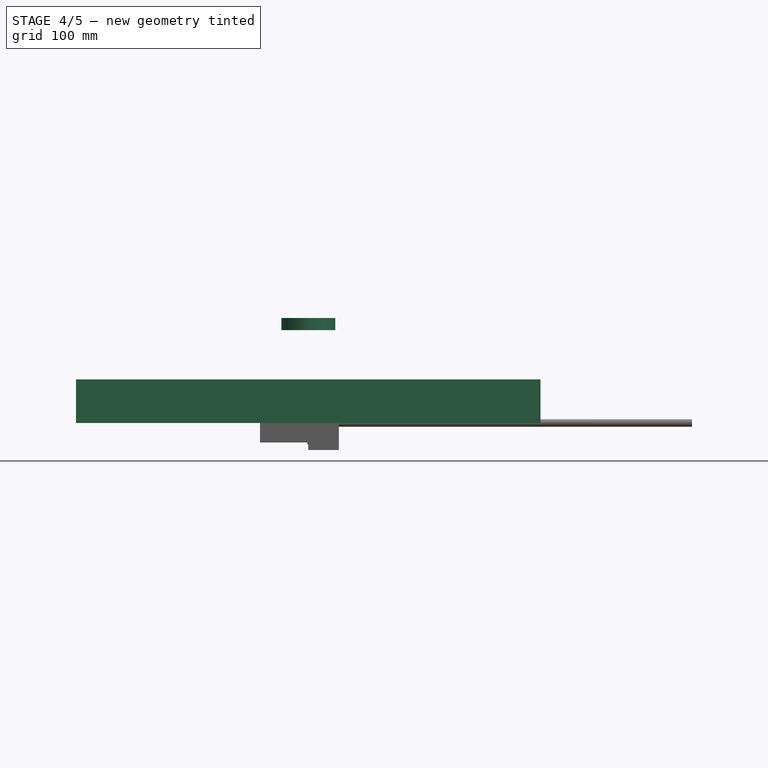
[diagram: stage 4 of 5 — front view after this stage's code; geometry added in this stage tinted green]
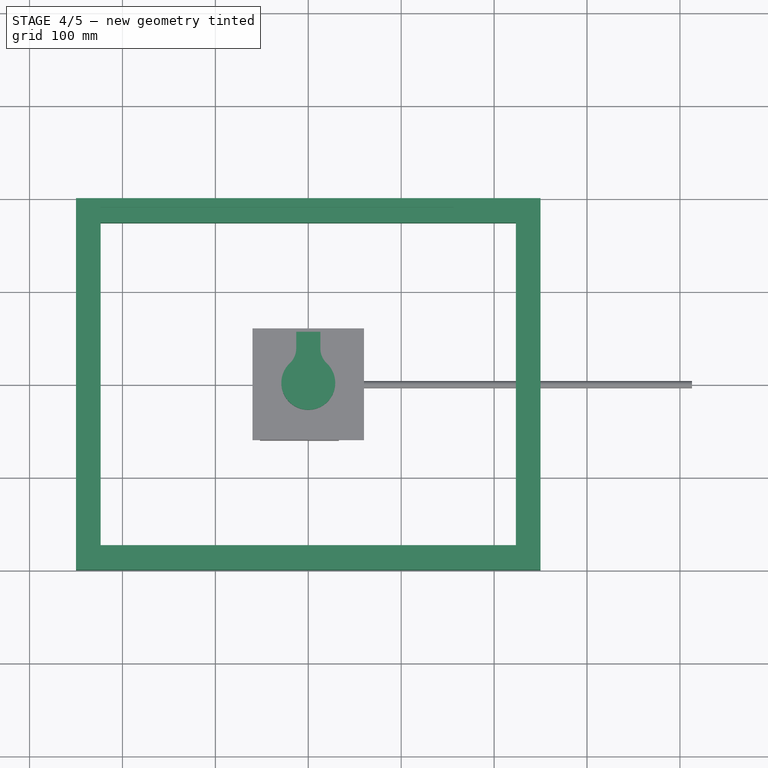
[diagram: stage 4 of 5 — top view after this stage's code; geometry added in this stage tinted green]
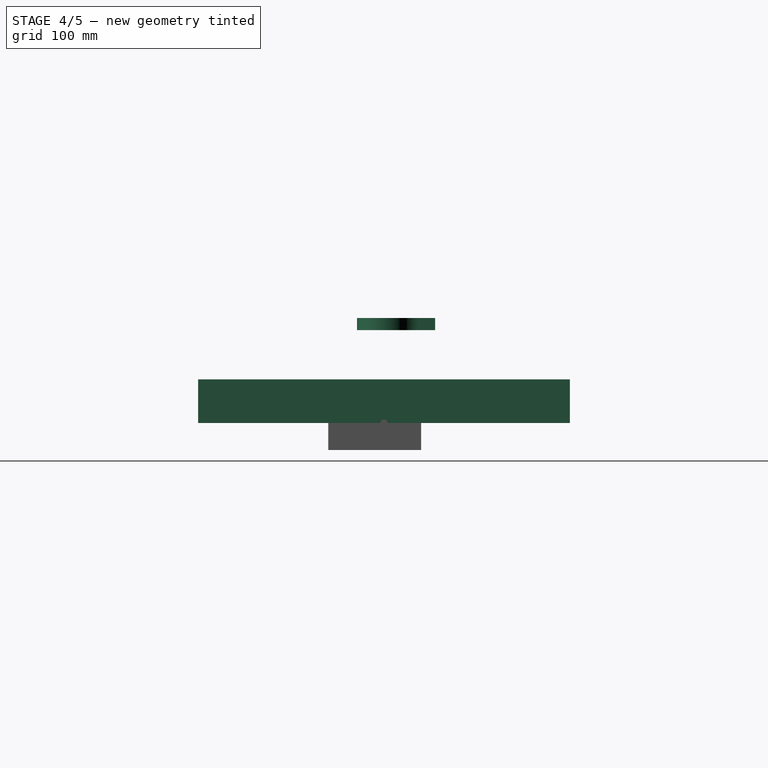
[diagram: stage 4 of 5 — right view after this stage's code; geometry added in this stage tinted green]
FEATURE [PartDesign::Body] Body002  label="Dosierer - mitte"
  Group = -> [Sketch002,Revolution001]
  Origin = -> Origin002
  Tip = -> Revolution001
FEATURE [PartDesign::ShapeBinder] CopyRevolution001
  Placement = pos=(0,0,0) rot=(0.57735,0.57735,0.57735;2.0944rad)
  TraceSupport = false
FEATURE [PartDesign::Plane] DatumPlane
  Length = 97.9587
  MapMode = 5
  Placement = pos=(-5.55e-14,3.33e-14,100) rot=(0,0,-1;1.5708rad)
  ResizeMode = 0
  Support = -> [CopyRevolution001]
  Width = 71.948
FEATURE [Sketcher::SketchObject] Sketch003
  MapMode = 5
  Placement = pos=(-5.55e-14,3.33e-14,100) rot=(0,0,-1;1.5708rad)
  Support = -> [CopyRevolution001]
  sketch-geometry (6):
    g0: LineSegment StartX=-55 StartY=-13 StartZ=0 EndX=-55 EndY=13 EndZ=0
    g1: LineSegment StartX=-55 StartY=13 StartZ=0 EndX=-37 EndY=13 EndZ=0
    g2: LineSegment StartX=-37 StartY=-13 StartZ=0 EndX=-55 EndY=-13 EndZ=0
    g3: ArcOfCircle CenterX=0 CenterY=0 CenterZ=0 NormalX=0 NormalY=0 NormalZ=1 AngleXU=0 Radius=29 StartAngle=3.89609 EndAngle=8.67028
    g4: ArcOfCircle CenterX=-37 CenterY=34.7813 CenterZ=0 NormalX=0 NormalY=0 NormalZ=1 AngleXU=0 Radius=21.7813 StartAngle=4.71239 EndAngle=5.52869
    g5: ArcOfCircle CenterX=-37 CenterY=-34.7812 CenterZ=0 NormalX=0 NormalY=0 NormalZ=1 AngleXU=0 Radius=21.7812 StartAngle=0.754498 EndAngle=1.5708
  constraints (15):
    c: Coincident(g0,g1)
    c: Horizontal(g1)
    c: Coincident(g2,g0)
    c: Symmetric(g0,g0,g-1)
    c: Distance(g0) = 26
    c: Coincident(g3,g-1)
    c: Diameter(g3) = 58
    c: Horizontal(g2)
    c: Distance(g3,g0) = 55
    c: Tangent(g1,g4) = -1.5708
    c: Tangent(g3,g4) = 1.5708
    c: Tangent(g2,g5) = -1.5708
    c: Tangent(g3,g5) = 1.5708
    c: Distance(g1) = 18
    c: Equal(g2,g1)
FEATURE [PartDesign::Pad] Pad001
  Length = 13
  Length2 = 100
  Placement = pos=(0,0,0) rot=(0.57735,0.57735,0.57735;2.0944rad)
  Profile = -> Sketch003
  Type = 0
FEATURE [PartDesign::Body] Body003  label="Dosierer halterung"
  Group = -> [DatumPlane,CopyRevolution001,Sketch003,Pad001,Sketch004,Pocket,Sketch005,Hole,Sketch006,Pocket001]
  Origin = -> Origin003
  Tip = -> Pocket001
FEATURE [Sketcher::SketchObject] Sketch007
  MapMode = 5
  Support = -> [XY_Plane004]
  sketch-geometry (8):
    g0: LineSegment StartX=-223.5 StartY=173.5 StartZ=0 EndX=223.5 EndY=173.5 EndZ=0
    g1: LineSegment StartX=223.5 StartY=173.5 StartZ=0 EndX=223.5 EndY=-173.5 EndZ=0
    g2: LineSegment StartX=223.5 StartY=-173.5 StartZ=0 EndX=-223.5 EndY=-173.5 EndZ=0
    g3: LineSegment StartX=-223.5 StartY=-173.5 StartZ=0 EndX=-223.5 EndY=173.5 EndZ=0
    g4: LineSegment StartX=-250 StartY=200 StartZ=0 EndX=250 EndY=200 EndZ=0
    g5: LineSegment StartX=250 StartY=200 StartZ=0 EndX=250 EndY=-200 EndZ=0
    g6: LineSegment StartX=250 StartY=-200 StartZ=0 EndX=-250 EndY=-200 EndZ=0
    g7: LineSegment StartX=-250 StartY=-200 StartZ=0 EndX=-250 EndY=200 EndZ=0
  constraints (20):
    c: Coincident(g0,g1)
    c: Coincident(g1,g2)
    c: Coincident(g2,g3)
    c: Coincident(g3,g0)
    c: Horizontal(g2)
    c: Vertical(g3)
    c: Coincident(g4,g5)
    c: Coincident(g5,g6)
    c: Coincident(g6,g7)
    c: Coincident(g7,g4)
    c: Horizontal(g6)
    c: Vertical(g7)
    c: DistanceY(g5,g5) = 400
    c: DistanceX(g4,g4) = 500
    c: Distance(g1,g5) = 26.5
    c: Symmetric(g4,g4,g-2)
    c: Symmetric(g0,g0,g-2)
    c: Symmetric(g4,g5,g-1)
    c: Distance(g1,g6) = 26.5
    c: Symmetric(g0,g1,g-1)
FEATURE [PartDesign::Pad] Pad002
  Length = 47
  Length2 = 100
  Profile = -> Sketch007
  Type = 0
FEATURE [Sketcher::SketchObject] Sketch008
  ExternalGeometry = -> [Pad002]
  MapMode = 5
  Placement = pos=(-223.5,0,0) rot=(0.57735,0.57735,0.57735;2.0944rad)
  Support = -> [Pad002]
  sketch-geometry (8):
    g0: LineSegment StartX=183.1 StartY=42 StartZ=0 EndX=183.1 EndY=47 EndZ=0
    g1: LineSegment StartX=183.1 StartY=47 StartZ=0 EndX=190.4 EndY=47 EndZ=0
    g2: LineSegment StartX=190.4 StartY=47 StartZ=0 EndX=190.4 EndY=42 EndZ=0
    g3: LineSegment StartX=190.4 StartY=42 StartZ=0 EndX=189.4 EndY=42 EndZ=0
    g4: LineSegment StartX=189.4 StartY=42 StartZ=0 EndX=189.4 EndY=46 EndZ=0
    g5: LineSegment StartX=189.4 StartY=46 StartZ=0 EndX=184.1 EndY=46 EndZ=0
    g6: LineSegment StartX=184.1 StartY=46 StartZ=0 EndX=184.1 EndY=42 EndZ=0
    g7: LineSegment StartX=184.1 StartY=42 StartZ=0 EndX=183.1 EndY=42 EndZ=0
  constraints (24):
    c: Vertical(g0)
    c: Coincident(g0,g1)
    c: Coincident(g1,g2)
    c: Coincident(g2,g3)
    c: Coincident(g3,g4)
    c: Coincident(g4,g5)
    c: Coincident(g5,g6)
    c: Coincident(g6,g7)
    c: Coincident(g7,g0)
    c: Vertical(g2)
    c: Horizontal(g1)
    c: Horizontal(g5)
    c: Horizontal(g7)
    c: Horizontal(g3)
    c: Vertical(g6)
    c: Vertical(g4)
    c: DistanceX(g1,g1) = 7.3
    c: Distance(g4,g2) = 1
    c: DistanceY(g0,g0) = 5
    c: Distance(g5,g0) = 1
    c: DistanceY(g2,g2) = 5
    c: Distance(g5,g1) = 1
    c: DistanceX(g-3,g0) = 9.6
    c: DistanceY(g0,g-3) = 0
FEATURE [PartDesign::Pad] Pad003
  BaseFeature = -> Pad002
  Length = 380
  Length2 = 100
  Profile = -> Sketch008
  Type = 0
FEATURE [PartDesign::Pocket] Pocket002
  BaseFeature = -> Pad003
  Length = 5
  Length2 = 100
  Profile = -> Pad003 [Face11]
  Type = 0
FEATURE [Sketcher::SketchObject] Sketch010
  MapMode = 5
  Support = -> [XY_Plane005]
  sketch-geometry (8):
    g0: LineSegment StartX=-2 StartY=5 StartZ=0 EndX=-2 EndY=2 EndZ=0
    g1: LineSegment StartX=-2 StartY=2 StartZ=0 EndX=-3 EndY=2 EndZ=0
    g2: LineSegment StartX=-3 StartY=2 StartZ=0 EndX=-3 EndY=3.8 EndZ=0
    g3: LineSegment StartX=-3 StartY=3.8 StartZ=0 EndX=-13 EndY=3.8 EndZ=0
    g4: LineSegment StartX=-13 StartY=3.8 StartZ=0 EndX=-13 EndY=0 EndZ=0
    g5: LineSegment StartX=-13 StartY=0 StartZ=0 EndX=0 EndY=0 EndZ=0
    g6: LineSegment StartX=0 StartY=0 StartZ=0 EndX=0 EndY=5 EndZ=0
    g7: LineSegment StartX=-2 StartY=5 StartZ=0 EndX=0 EndY=5 EndZ=0
  constraints (23):
    c: Coincident(g0,g1)
    c: Coincident(g1,g2)
    c: Coincident(g2,g3)
    c: Horizontal(g3)
    c: Coincident(g3,g4)
    c: PointOnObject(g4,g-1)
    c: Vertical(g4)
    c: Coincident(g4,g5)
    c: Coincident(g5,g-1)
    c: Coincident(g5,g6)
    c: Vertical(g6)
    c: Coincident(g7,g0)
    c: Coincident(g7,g6)
    c: Horizontal(g7)
    c: Vertical(g0)
    c: Horizontal(g1)
    c: Vertical(g2)
    c: DistanceY(g6,g6) = 5
    c: DistanceX(g7,g7) = 2
    c: DistanceY(g0,g0) = 3
    c: DistanceX(g1,g1) = 1
    c: DistanceX(g3,g3) = 10
    c: DistanceY(g4,g4) = 3.8
FEATURE [PartDesign::Revolution] Revolution002
  Angle = 360
  Axis = (1,0,0)
  Base = (0,0,0)
  BaseFeature = -> Pad004
  Placement = pos=(0,0,0) rot=(0.57735,0.57735,0.57735;2.0944rad)
  Profile = -> Sketch010
  ReferenceAxis = -> X_Axis005
FEATURE [Sketcher::SketchObject] Sketch011
  MapMode = 5
  Placement = pos=(0,0,0) rot=(0.57735,0.57735,0.57735;2.0944rad)
  Support = -> [YZ_Plane005]
  sketch-geometry (11):
    g0: Circle [constr] CenterX=0 CenterY=0 CenterZ=0 NormalX=0 NormalY=0 NormalZ=1 AngleXU=0 Radius=23.25
    g1: ArcOfCircle CenterX=-29 CenterY=0 CenterZ=0 NormalX=0 NormalY=0 NormalZ=1 AngleXU=0 Radius=3.5 StartAngle=1.5708 EndAngle=3.96321
    g2: ArcOfCircle CenterX=29 CenterY=0 CenterZ=0 NormalX=0 NormalY=0 NormalZ=1 AngleXU=0 Radius=3.5 StartAngle=5.46156 EndAngle=7.85398
    g3: LineSegment StartX=31.3836 StartY=-2.56288 StartZ=0 EndX=15.8341 EndY=-17.0248 EndZ=0
    g4: LineSegment StartX=22.985 StartY=3.5 StartZ=0 EndX=29 EndY=3.5 EndZ=0
    g5: LineSegment StartX=-31.3836 StartY=-2.56288 StartZ=0 EndX=-15.834 EndY=-17.0248 EndZ=0
    g6: LineSegment StartX=-29 StartY=3.5 StartZ=0 EndX=-22.985 EndY=3.5 EndZ=0
    g7: ArcOfCircle CenterX=0 CenterY=0 CenterZ=0 NormalX=0 NormalY=0 NormalZ=1 AngleXU=0 Radius=23.25 StartAngle=0.151112 EndAngle=2.99048
    g8: ArcOfCircle CenterX=0 CenterY=0 CenterZ=0 NormalX=0 NormalY=0 NormalZ=1 AngleXU=0 Radius=23.25 StartAngle=3.96321 EndAngle=5.46156
    g9: Circle CenterX=-29 CenterY=0 CenterZ=0 NormalX=0 NormalY=0 NormalZ=1 AngleXU=0 Radius=2.5
    g10: Circle CenterX=29 CenterY=0 CenterZ=0 NormalX=0 NormalY=0 NormalZ=1 AngleXU=0 Radius=2.5
  constraints (30):
    c: Diameter(g0) = 46.5
    c: PointOnObject(g1,g-1)
    c: Symmetric(g1,g2,g-2)
    c: Equal(g2,g1)
    c: Diameter(g2) = 7
    c: DistanceX(g-2,g2) = 29
    c: Coincident(g0,g-1)
    c: Tangent(g3,g0)
    c: Tangent(g3,g2)
    c: PointOnObject(g4,g0)
    c: Horizontal(g4)
    c: PointOnObject(g5,g0)
    c: Horizontal(g6)
    c: Tangent(g6,g1)
    c: Tangent(g5,g0)
    c: Coincident(g7,g-1)
    c: Coincident(g7,g4)
    c: Coincident(g7,g6)
    c: Coincident(g8,g7)
    c: Coincident(g8,g5)
    c: Coincident(g8,g3)
    c: Tangent(g4,g2)
    c: Coincident(g1,g6)
    c: Coincident(g2,g3)
    c: Coincident(g2,g4)
    c: Tangent(g1,g5) = -1.5708
    c: Coincident(g9,g1)
    c: Coincident(g10,g2)
    c: Equal(g10,g9)
    c: Diameter(g9) = 5
FEATURE [PartDesign::Pad] Pad005
  BaseFeature = -> Revolution002
  Length = 0.8
  Length2 = 100
  Placement = pos=(0,0,0) rot=(0.57735,0.57735,0.57735;2.0944rad)
  Profile = -> Sketch011
  Reversed = true
  Type = 0
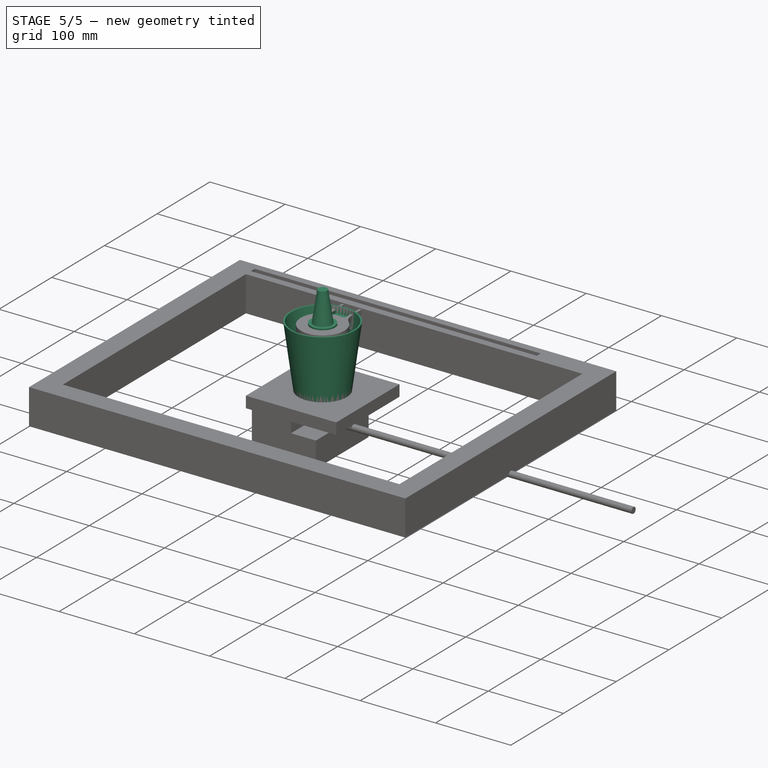
[diagram: stage 5 of 5 — iso view after this stage's code; geometry added in this stage tinted green]
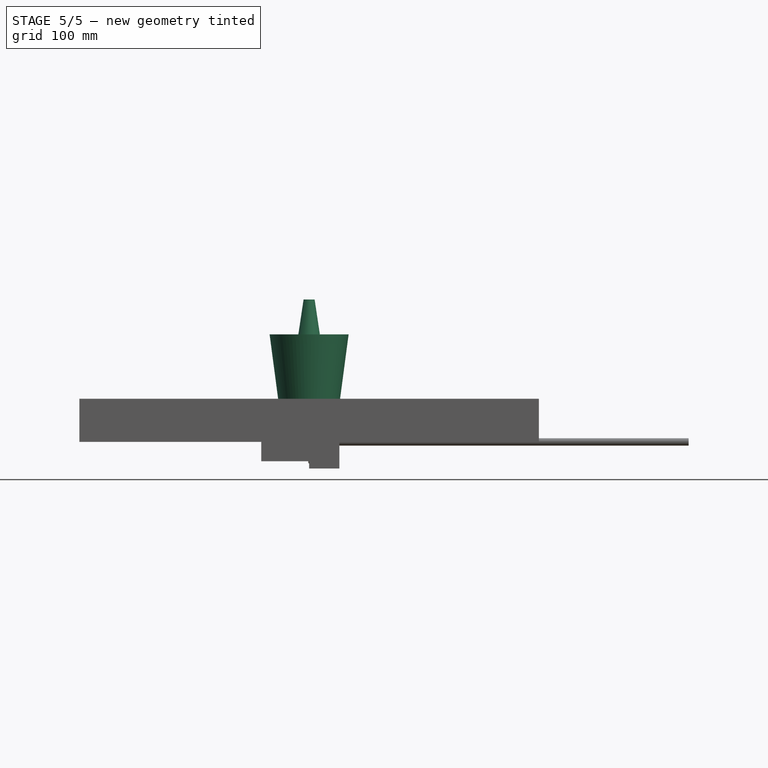
[diagram: stage 5 of 5 — front view after this stage's code; geometry added in this stage tinted green]
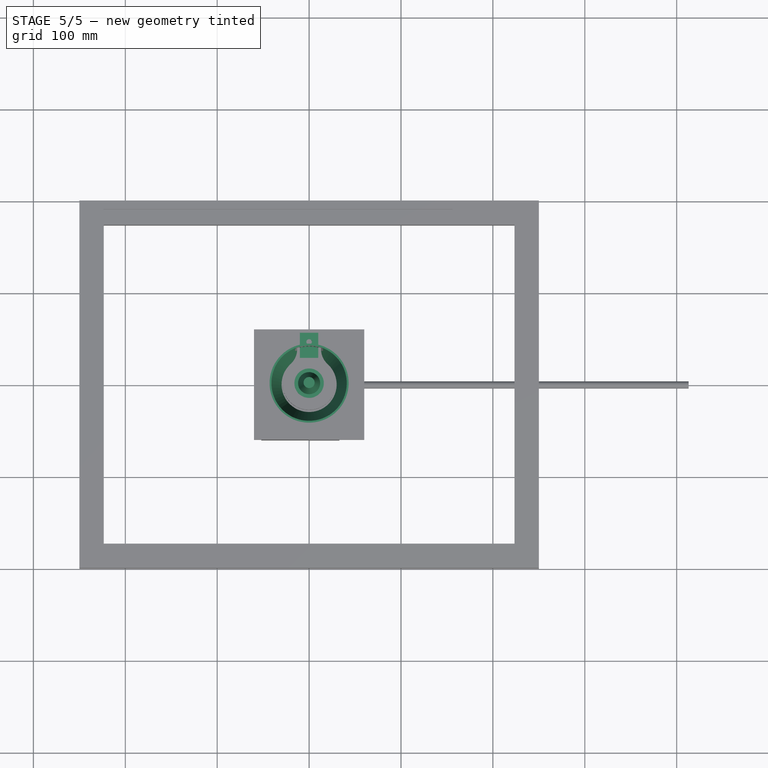
[diagram: stage 5 of 5 — top view after this stage's code; geometry added in this stage tinted green]
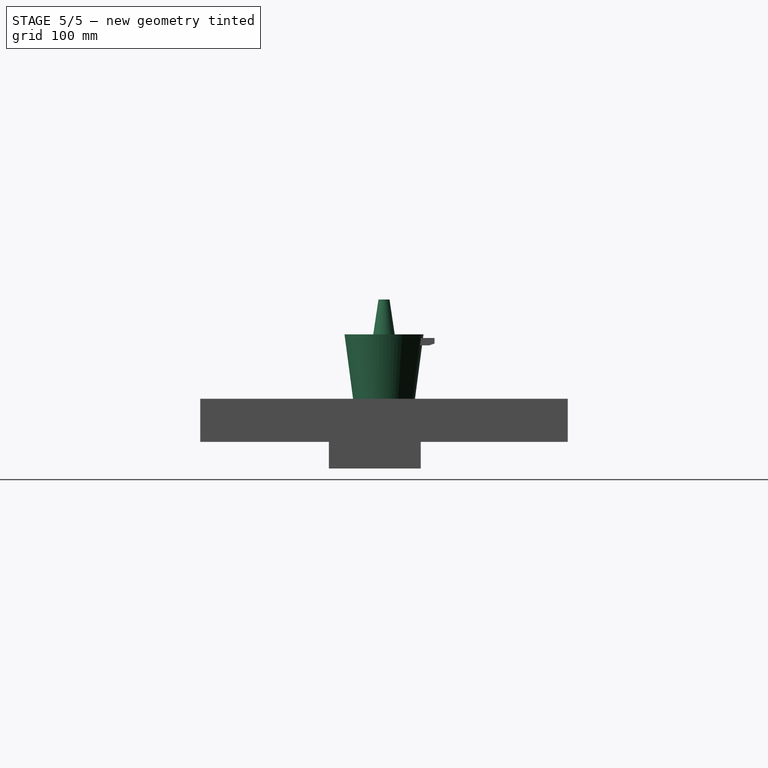
[diagram: stage 5 of 5 — right view after this stage's code; geometry added in this stage tinted green]
FEATURE [Sketcher::SketchObject] Sketch
  MapMode = 5
  Placement = pos=(0,0,0) rot=(0.57735,0.57735,0.57735;2.0944rad)
  Support = -> [YZ_Plane]
  sketch-geometry (6):
    g0: LineSegment StartX=0 StartY=0 StartZ=0 EndX=27.5 EndY=0 EndZ=0
    g1: LineSegment StartX=27.5 StartY=0 StartZ=0 EndX=43 EndY=117 EndZ=0
    g2: LineSegment StartX=43 StartY=117 StartZ=0 EndX=40.9825 EndY=117 EndZ=0
    g3: LineSegment StartX=40.9825 StartY=117 StartZ=0 EndX=25.7475 EndY=2 EndZ=0
    g4: LineSegment StartX=25.7475 StartY=2 StartZ=0 EndX=0 EndY=2 EndZ=0
    g5: LineSegment StartX=0 StartY=2 StartZ=0 EndX=0 EndY=0 EndZ=0
  constraints (17):
    c: Coincident(g-1,g0)
    c: PointOnObject(g0,g-1)
    c: Coincident(g0,g1)
    c: Coincident(g1,g2)
    c: Coincident(g2,g3)
    c: Coincident(g3,g4)
    c: PointOnObject(g4,g-2)
    c: Horizontal(g4)
    c: Coincident(g4,g5)
    c: Coincident(g5,g0)
    c: DistanceX(g0,g0) = 27.5
    c: Parallel(g3,g1)
    c: DistanceY(g5,g5) = 2
    c: Horizontal(g2)
    c: Distance(g1,g-1) = 117
    c: Distance(g1,g-2) = 43
    c: Distance(g2,g1) = 2
FEATURE [PartDesign::Revolution] Revolution
  Angle = 360
  Axis = (-3e-16,3e-16,1)
  Base = (0,0,0)
  Placement = pos=(0,0,0) rot=(0.57735,0.57735,0.57735;2.0944rad)
  Profile = -> Sketch
  ReferenceAxis = -> Z_Axis
  Reversed = true
FEATURE [PartDesign::Body] Body  label="Glas"
  Group = -> [Sketch,Revolution]
  Origin = -> Origin
  Tip = -> Revolution
FEATURE [Sketcher::SketchObject] Sketch001
  MapMode = 5
  Support = -> [XY_Plane001]
  sketch-geometry (16):
    g0: Circle CenterX=0 CenterY=0 CenterZ=0 NormalX=0 NormalY=0 NormalZ=1 AngleXU=0 Radius=3.9
    g1: ArcOfCircle CenterX=0 CenterY=0 CenterZ=0 NormalX=0 NormalY=0 NormalZ=1 AngleXU=0 Radius=8.1 StartAngle=2.61088 EndAngle=3.6723
    g2: LineSegment StartX=7.04344 StartY=4 StartZ=0 EndX=41.0434 EndY=4 EndZ=0
    g3: LineSegment StartX=41.0434 StartY=4 StartZ=0 EndX=41.0434 EndY=-4 EndZ=0
    g4: LineSegment StartX=41.0434 StartY=-4 StartZ=0 EndX=7.04344 EndY=-4 EndZ=0
    g5: LineSegment StartX=-6.98582 StartY=4.0998 StartZ=0 EndX=-23.9858 EndY=33.5447 EndZ=0
    g6: LineSegment StartX=-23.9858 StartY=33.5447 StartZ=0 EndX=-17.0576 EndY=37.5447 EndZ=0
    g7: LineSegment StartX=-17.0576 StartY=37.5447 StartZ=0 EndX=-0.0576167 EndY=8.0998 EndZ=0
    g8: LineSegment StartX=-6.98582 StartY=-4.0998 StartZ=0 EndX=-23.9858 EndY=-33.5447 EndZ=0
    g9: LineSegment StartX=-23.9858 StartY=-33.5447 StartZ=0 EndX=-17.0576 EndY=-37.5447 EndZ=0
    g10: LineSegment StartX=-17.0576 StartY=-37.5447 StartZ=0 EndX=-0.0576167 EndY=-8.0998 EndZ=0
    g11: LineSegment [constr] StartX=0 StartY=0 StartZ=0 EndX=41.0434 EndY=0 EndZ=0
    g12: LineSegment [constr] StartX=0 StartY=0 StartZ=0 EndX=-20.5217 EndY=35.5447 EndZ=0
    g13: LineSegment [constr] StartX=0 StartY=0 StartZ=0 EndX=-20.5217 EndY=-35.5447 EndZ=0
    g14: ArcOfCircle CenterX=0 CenterY=0 CenterZ=0 NormalX=0 NormalY=0 NormalZ=1 AngleXU=0 Radius=8.1 StartAngle=0.516486 EndAngle=1.57791
    g15: ArcOfCircle CenterX=0 CenterY=0 CenterZ=0 NormalX=0 NormalY=0 NormalZ=1 AngleXU=0 Radius=8.1 StartAngle=4.70528 EndAngle=5.7667
  constraints (44):
    c: Coincident(g1,g0)
    c: Coincident(g2,g3)
    c: Coincident(g3,g4)
    c: Coincident(g5,g6)
    c: Coincident(g6,g7)
    c: Coincident(g8,g9)
    c: Coincident(g9,g10)
    c: Coincident(g11,g0)
    c: PointOnObject(g11,g3)
    c: Coincident(g12,g0)
    c: PointOnObject(g12,g6)
    c: Coincident(g13,g0)
    c: PointOnObject(g13,g9)
    c: Diameter(g0) = 7.8
    c: Diameter(g1) = 16.2
    c: Angle(g11,g12) = 2.0944
    c: Angle(g13,g11) = 2.0944
    c: Symmetric(g5,g6,g12)
    c: Distance(g6) = 8
    c: Symmetric(g8,g9,g13)
    c: Parallel(g5,g7)
    c: Parallel(g5,g12)
    c: Parallel(g8,g13)
    c: Parallel(g13,g10)
    c: Distance(g9) = 8
    c: Symmetric(g3,g2,g11)
    c: Parallel(g2,g11)
    c: Parallel(g11,g4)
    c: Distance(g3) = 8
    c: Coincident(g-1,g0)
    c: Horizontal(g11)
    c: Coincident(g1,g5)
    c: Coincident(g14,g7)
    c: Equal(g1,g14)
    c: Coincident(g14,g2)
    c: Coincident(g1,g14)
    c: Coincident(g15,g4)
    c: Equal(g1,g15)
    c: Coincident(g15,g10)
    c: Coincident(g1,g15)
    c: Coincident(g1,g8)
    c: DistanceX(g2,g2) = 34
    c: Distance(g7) = 34
    c: Distance(g8) = 34
FEATURE [PartDesign::Pad] Pad
  Length = 11
  Length2 = 100
  Profile = -> Sketch001
  Type = 0
FEATURE [PartDesign::Body] Body001  label="Dosierer-unten"
  Group = -> [Sketch001,Pad]
  Origin = -> Origin001
  Tip = -> Pad
FEATURE [Sketcher::SketchObject] Sketch002
  MapMode = 5
  Placement = pos=(0,0,0) rot=(0.57735,0.57735,0.57735;2.0944rad)
  Support = -> [YZ_Plane002]
  sketch-geometry (14):
    g0: LineSegment StartX=0 StartY=11 StartZ=0 EndX=9 EndY=11 EndZ=0
    g1: LineSegment StartX=9 StartY=11 StartZ=0 EndX=20 EndY=89 EndZ=0
    g2: LineSegment StartX=20 StartY=89 StartZ=0 EndX=28 EndY=89 EndZ=0
    g3: LineSegment StartX=28 StartY=89 StartZ=0 EndX=28 EndY=100 EndZ=0
    g4: LineSegment StartX=16 StartY=100 StartZ=0 EndX=16 EndY=115 EndZ=0
    g5: LineSegment StartX=16 StartY=115 StartZ=0 EndX=12 EndY=115 EndZ=0
    g6: LineSegment StartX=12 StartY=115 StartZ=0 EndX=6 EndY=155 EndZ=0
    g7: LineSegment StartX=6 StartY=155 StartZ=0 EndX=0 EndY=155 EndZ=0
    g8: LineSegment StartX=0 StartY=155 StartZ=0 EndX=0 EndY=11 EndZ=0
    g9: LineSegment [constr] StartX=6 StartY=155 StartZ=0 EndX=12 EndY=155 EndZ=0
    g10: LineSegment [constr] StartX=12 StartY=115 StartZ=0 EndX=12 EndY=155 EndZ=0
    g11: LineSegment [constr] StartX=9 StartY=11 StartZ=0 EndX=20 EndY=11 EndZ=0
    g12: LineSegment [constr] StartX=20 StartY=89 StartZ=0 EndX=20 EndY=11 EndZ=0
    g13: LineSegment StartX=16 StartY=100 StartZ=0 EndX=28 EndY=100 EndZ=0
  constraints (42):
    c: PointOnObject(g0,g-2)
    c: Horizontal(g0)
    c: Coincident(g1,g2)
    c: Coincident(g2,g3)
    c: Vertical(g3)
    c: Vertical(g4)
    c: Coincident(g4,g5)
    c: Coincident(g5,g6)
    c: Coincident(g6,g7)
    c: PointOnObject(g7,g-2)
    c: Coincident(g8,g7)
    c: Coincident(g8,g0)
    c: Distance(g0) = 9
    c: Coincident(g1,g0)
    c: Distance(g1,g8) = 20
    c: Distance(g3) = 11
    c: Perpendicular(g2,g3)
    c: Distance(g2) = 8
    c: Distance(g4) = 15
    c: Distance(g5) = 4
    c: Perpendicular(g4,g5)
    c: Distance(g7) = 6
    c: Horizontal(g7)
    c: Coincident(g9,g6)
    c: Horizontal(g9)
    c: Coincident(g10,g5)
    c: Coincident(g10,g9)
    c: Vertical(g10)
    c: Distance(g10) = 40
    c: Coincident(g11,g0)
    c: Coincident(g12,g1)
    c: Coincident(g12,g11)
    c: Vertical(g12)
    c: Horizontal(g11)
    c: Distance(g12) = 78
    c: Distance(g0,g-1) = 11
    c: Coincident(g13,g4)
    c: Coincident(g13,g3)
    c: Horizontal(g13)
    c: Distance(g13) = 12
    c: Distance(g3,g-1) = 100
    c: Distance(g3,g8) = 28
FEATURE [PartDesign::Revolution] Revolution001
  Angle = 360
  Axis = (-3e-16,3e-16,1)
  Base = (0,0,0)
  Placement = pos=(0,0,0) rot=(0.57735,0.57735,0.57735;2.0944rad)
  Profile = -> Sketch002
  ReferenceAxis = -> Z_Axis002
  Reversed = true
FEATURE [Sketcher::SketchObject] Sketch004
  ExternalGeometry = -> [Pad001]
  MapMode = 5
  Placement = pos=(-5.03e-14,4.55e-14,113) rot=(0,0,-1;1.5708rad)
  Support = -> [Pad001]
  sketch-geometry (4):
    g0: LineSegment StartX=-55 StartY=10 StartZ=0 EndX=-27.5 EndY=10 EndZ=0
    g1: LineSegment StartX=-27.5 StartY=10 StartZ=0 EndX=-27.5 EndY=-10 EndZ=0
    g2: LineSegment StartX=-27.5 StartY=-10 StartZ=0 EndX=-55 EndY=-10 EndZ=0
    g3: LineSegment StartX=-55 StartY=-10 StartZ=0 EndX=-55 EndY=10 EndZ=0
  constraints (11):
    c: Coincident(g0,g1)
    c: Coincident(g1,g2)
    c: Coincident(g2,g3)
    c: Coincident(g3,g0)
    c: Horizontal(g0)
    c: Horizontal(g2)
    c: Vertical(g1)
    c: PointOnObject(g0,g-3)
    c: Symmetric(g2,g0,g-1)
    c: Distance(g3) = 20
    c: Distance(g0) = 27.5
FEATURE [PartDesign::Pocket] Pocket
  BaseFeature = -> Pad001
  Length = 4.5
  Length2 = 100
  Placement = pos=(0,0,0) rot=(0.57735,0.57735,0.57735;2.0944rad)
  Profile = -> Sketch004
  Type = 0
FEATURE [Sketcher::SketchObject] Sketch005
  ExternalGeometry = -> [Pocket]
  MapMode = 5
  Placement = pos=(-4.46e-14,3.41e-14,108.5) rot=(0,0,-1;1.5708rad)
  Support = -> [Pocket]
  sketch-geometry (1):
    g0: Circle CenterX=-45.05 CenterY=0 CenterZ=0 NormalX=0 NormalY=0 NormalZ=1 AngleXU=0 Radius=2.45
  constraints (3):
    c: PointOnObject(g0,g-1)
    c: Diameter(g0) = 4.9
    c: Distance(g0,g-3) = 9.95
FEATURE [PartDesign::Hole] Hole
  BaseFeature = -> Pocket
  Depth = 25
  DepthType = 0
  Diameter = 6
  DrillPoint = 1
  DrillPointAngle = 118
  HoleCutCountersinkAngle = 90
  HoleCutDepth = 0
  HoleCutDiameter = 0
  HoleCutType = 0
  ModelActualThread = false
  Placement = pos=(0,0,0) rot=(0.57735,0.57735,0.57735;2.0944rad)
  Profile = -> Sketch005
  Tapered = false
  TaperedAngle = 90
  ThreadAngle = 0
  ThreadClass = 0
  ThreadCutOffInner = 0
  ThreadCutOffOuter = 0
  ThreadDirection = 0
  ThreadFit = 0
  ThreadPitch = 0
  ThreadSize = 0
  ThreadType = 0
  Threaded = false
FEATURE [Sketcher::SketchObject] Sketch006
  ExternalGeometry = -> [Hole]
  MapMode = 5
  Placement = pos=(13,2.2e-15,8.7e-15) rot=(0.57735,0.57735,0.57735;2.0944rad)
  Support = -> [Hole]
  sketch-geometry (5):
    g0: LineSegment StartX=55 StartY=107 StartZ=0 EndX=49 EndY=105 EndZ=0
    g1: LineSegment StartX=49 StartY=105 StartZ=0 EndX=30.5 EndY=105 EndZ=0
    g2: LineSegment StartX=30.5 StartY=105 StartZ=0 EndX=27.5 EndY=100 EndZ=0
    g3: LineSegment StartX=27.5 StartY=100 StartZ=0 EndX=55 EndY=100 EndZ=0
    g4: LineSegment StartX=55 StartY=100 StartZ=0 EndX=55 EndY=107 EndZ=0
  constraints (14):
    c: Coincident(g0,g1)
    c: Horizontal(g1)
    c: Coincident(g1,g2)
    c: Coincident(g2,g3)
    c: Horizontal(g3)
    c: Coincident(g3,g4)
    c: Coincident(g4,g0)
    c: Vertical(g4)
    c: Coincident(g3,g-3)
    c: Distance(g0,g-3) = 6
    c: DistanceY(g1,g-3) = 8
    c: Distance(g3) = 27.5
    c: Distance(g1) = 18.5
    c: Distance(g0,g4) = 6
FEATURE [PartDesign::Pocket] Pocket001
  BaseFeature = -> Hole
  Length = 27
  Length2 = 100
  Midplane = true
  Placement = pos=(0,0,0) rot=(0.57735,0.57735,0.57735;2.0944rad)
  Profile = -> Sketch006
  Type = 1
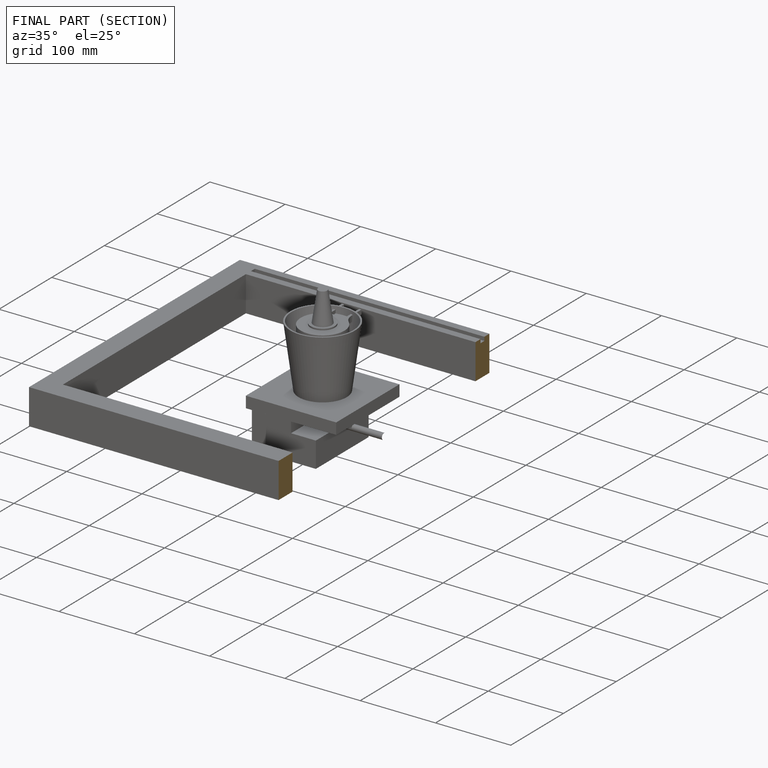
[diagram: finished part — half-section view (interior)]
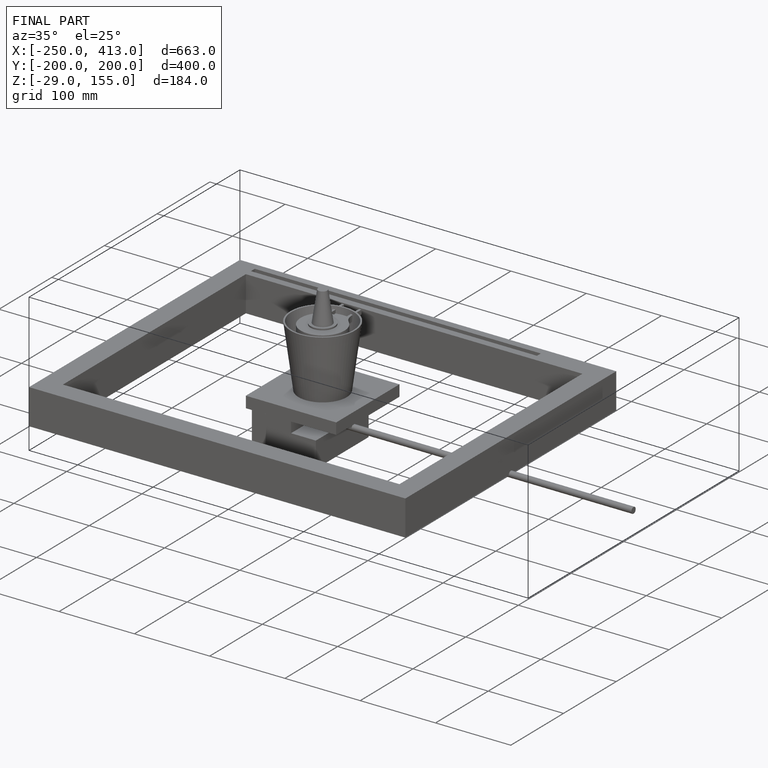
[diagram: finished part — iso view with bounding-box wireframe]
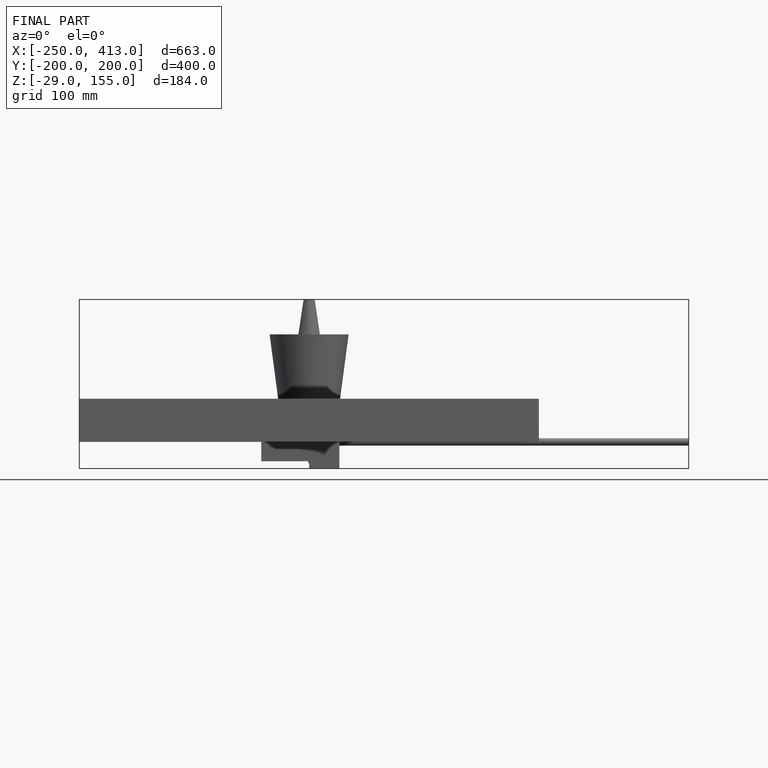
[diagram: finished part — front view with bounding-box wireframe]
